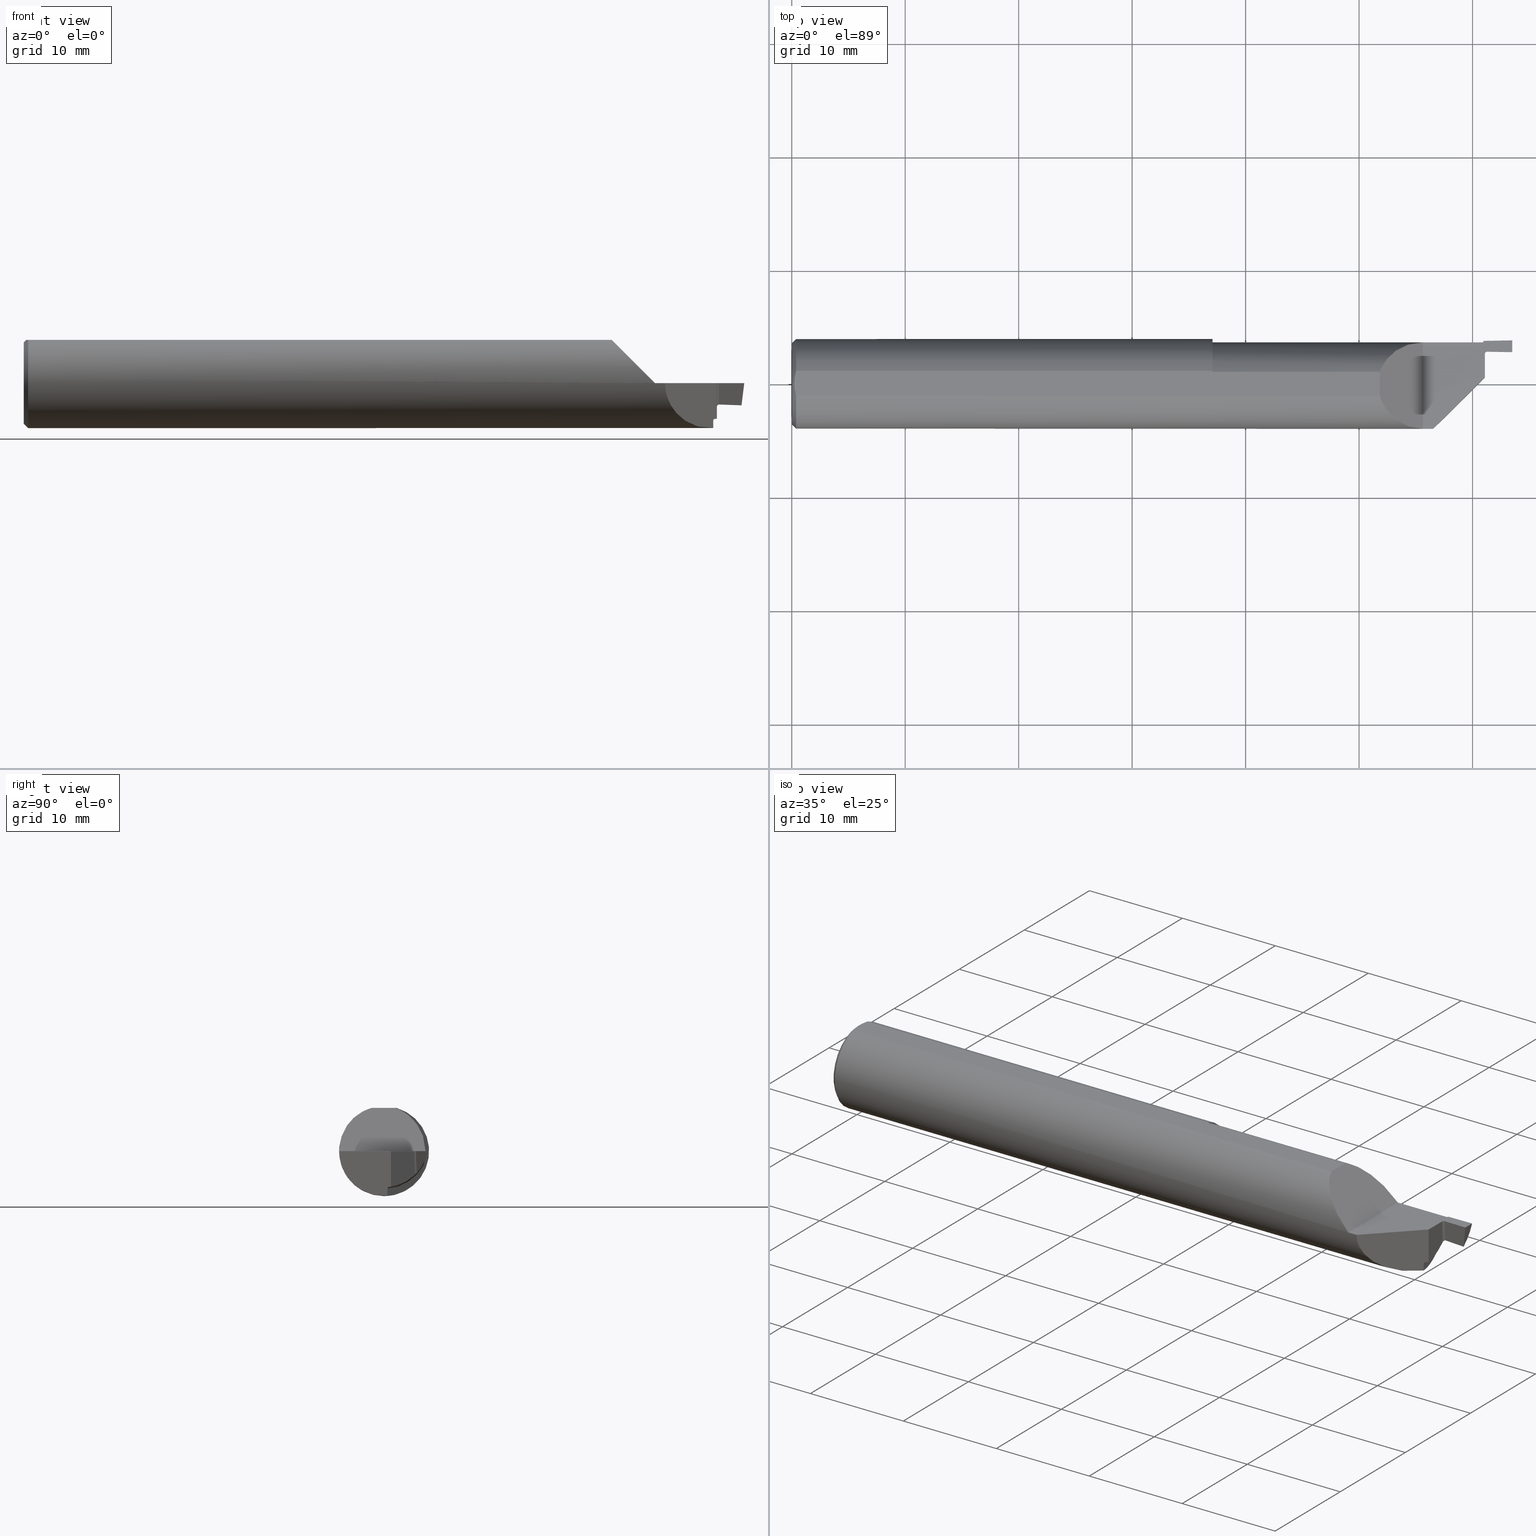
[diagram: canonical four-view strip — front | top / right | iso, engineering-drawing reading convention]
A machine part, canonical four-view strip (front | top / right | iso — engineering-drawing reading convention). The complete STEP part file that produces these views, byte-faithful:
ISO-10303-21;
HEADER;
FILE_DESCRIPTION (( 'STEP AP203' ),
    '1' );
FILE_NAME ('220076-FG312-040.STEP',
    '2024-06-10T23:03:43',
    ( '' ),
    ( '' ),
    'SwSTEP 2.0',
    'SolidWorks 2022',
    '' );
FILE_SCHEMA (( 'CONFIG_CONTROL_DESIGN' ));
ENDSEC;

DATA;
#1 = EDGE_CURVE ( 'NONE', #102, #218, #459, .T. ) ;
#2 = ORIENTED_EDGE ( 'NONE', *, *, #414, .F. ) ;
#3 = CARTESIAN_POINT ( 'NONE',  ( 2.405000000000000249, 0.02390000000000001845, 0.000000000000000000 ) ) ;
#4 = CARTESIAN_POINT ( 'NONE',  ( 0.01499999999999970281, 0.04286257108480545641, 0.1500999999999999834 ) ) ;
#5 = APPROVAL_DATE_TIME ( #827, #329 ) ;
#6 = EDGE_LOOP ( 'NONE', ( #67, #416, #729, #484, #2, #119, #803, #824, #792, #96, #342 ) ) ;
#7 = LINE ( 'NONE', #765, #35 ) ;
#8 = CARTESIAN_POINT ( 'NONE',  ( 2.120766287695780239, 0.1440559360311357284, 0.06933371230421984943 ) ) ;
#9 = EDGE_CURVE ( 'NONE', #305, #440, #185, .T. ) ;
#10 = CARTESIAN_POINT ( 'NONE',  ( 1.460000000000000187, 0.04286257108480545641, 0.1500999999999999834 ) ) ;
#11 = CARTESIAN_POINT ( 'NONE',  ( 2.405000000000000249, 0.02390000000000001845, -0.1560999999999999888 ) ) ;
#12 = CARTESIAN_POINT ( 'NONE',  ( 2.405001483111417926, 0.1037663323184448705, -0.0002790132549049748338 ) ) ;
#13 = LINE ( 'NONE', #579, #650 ) ;
#14 = EDGE_CURVE ( 'NONE', #31, #450, #366, .T. ) ;
#15 = CARTESIAN_POINT ( 'NONE',  ( 2.397423808061100114, 0.01632380806110001956, -0.1242544045886763149 ) ) ;
#16 = PLANE ( 'NONE',  #517 ) ;
#17 = DESIGN_CONTEXT ( 'detailed design', #272, 'design' ) ;
#18 = PERSON_AND_ORGANIZATION_ROLE ( 'creator' ) ;
#19 = VECTOR ( 'NONE', #241, 39.37007874015748143 ) ;
#20 = CYLINDRICAL_SURFACE ( 'NONE', #310, 0.1499999999999999667 ) ;
#21 = FACE_OUTER_BOUND ( 'NONE', #552, .T. ) ;
#22 = VERTEX_POINT ( 'NONE', #755 ) ;
#23 = ADVANCED_FACE ( 'NONE', ( #313 ), #208, .T. ) ;
#24 = DIRECTION ( 'NONE',  ( -1.000000000000000000, 0.000000000000000000, -0.000000000000000000 ) ) ;
#25 = EDGE_LOOP ( 'NONE', ( #124, #486, #423 ) ) ;
#26 =( BOUNDED_CURVE ( )  B_SPLINE_CURVE ( 3, ( #441, #698, #179, #115 ),
 .UNSPECIFIED., .F., .T. ) 
 B_SPLINE_CURVE_WITH_KNOTS ( ( 4, 4 ),
 ( 1.720556221768346328, 2.319328245325930737 ),
 .UNSPECIFIED. ) 
 CURVE ( )  GEOMETRIC_REPRESENTATION_ITEM ( )  RATIONAL_B_SPLINE_CURVE ( ( 1.000000000000000000, 0.9703451699787477569, 0.9703451699787477569, 1.000000000000000000 ) ) 
 REPRESENTATION_ITEM ( '' )  );
#27 = ORIENTED_EDGE ( 'NONE', *, *, #719, .F. ) ;
#28 = CARTESIAN_POINT ( 'NONE',  ( 2.393528424321476944, 0.1413178839606255843, -0.02970743870867165182 ) ) ;
#29 = EDGE_LOOP ( 'NONE', ( #324, #419, #182, #173 ) ) ;
#30 = ADVANCED_FACE ( 'NONE', ( #116 ), #144, .F. ) ;
#31 = VERTEX_POINT ( 'NONE', #818 ) ;
#32 = VECTOR ( 'NONE', #217, 39.37007874015748143 ) ;
#33 = CARTESIAN_POINT ( 'NONE',  ( 2.391587017932428338, 0.1399723861135269698, -0.03617397850232798029 ) ) ;
#34 = VERTEX_POINT ( 'NONE', #630 ) ;
#35 = VECTOR ( 'NONE', #512, 39.37007874015748143 ) ;
#36 = ADVANCED_FACE ( 'NONE', ( #694 ), #122, .T. ) ;
#37 = CARTESIAN_POINT ( 'NONE',  ( 0.01308010236197408062, -0.03587054952121924989, 0.1500999999999999834 ) ) ;
#38 = VERTEX_POINT ( 'NONE', #635 ) ;
#39 = CARTESIAN_POINT ( 'NONE',  ( 0.01499999999999970281, 0.000000000000000000, 0.000000000000000000 ) ) ;
#40 = ORIENTED_EDGE ( 'NONE', *, *, #162, .T. ) ;
#41 = CARTESIAN_POINT ( 'NONE',  ( 2.405000000000000249, 0.1036166103841832803, 0.000000000000000000 ) ) ;
#42 = ORIENTED_EDGE ( 'NONE', *, *, #692, .T. ) ;
#43 = CARTESIAN_POINT ( 'NONE',  ( 2.224999999999999645, -0.1560999999999999888, 0.000000000000000000 ) ) ;
#44 = CARTESIAN_POINT ( 'NONE',  ( 2.397684499763014010, 0.001388790460967761348, 0.02500000000000001180 ) ) ;
#45 = DIRECTION ( 'NONE',  ( -1.000000000000000000, -0.000000000000000000, -0.000000000000000000 ) ) ;
#46 = ORIENTED_EDGE ( 'NONE', *, *, #674, .F. ) ;
#47 = PRODUCT_DEFINITION_FORMATION_WITH_SPECIFIED_SOURCE ( 'ANY', '', #780, .NOT_KNOWN. ) ;
#48 = CARTESIAN_POINT ( 'NONE',  ( 2.413184916630657373, 0.1142055148191931657, -0.07418275632165870215 ) ) ;
#49 = VECTOR ( 'NONE', #482, 39.37007874015748143 ) ;
#50 = DIRECTION ( 'NONE',  ( 0.000000000000000000, 0.000000000000000000, -1.000000000000000000 ) ) ;
#51 =( NAMED_UNIT ( * ) SI_UNIT ( $, .STERADIAN. ) SOLID_ANGLE_UNIT ( ) );
#52 = VERTEX_POINT ( 'NONE', #258 ) ;
#53 = CARTESIAN_POINT ( 'NONE',  ( 2.392508837550267220, 0.01140883755026705221, -0.1556825244712829459 ) ) ;
#54 = PRODUCT_RELATED_PRODUCT_CATEGORY ( 'detail', '', ( #780 ) ) ;
#55 = PLANE ( 'NONE',  #673 ) ;
#56 = CARTESIAN_POINT ( 'NONE',  ( 2.413139705841341964, 0.1116153904340031061, -1.280553747030123384E-17 ) ) ;
#57 = ORIENTED_EDGE ( 'NONE', *, *, #210, .T. ) ;
#58 = DIRECTION ( 'NONE',  ( 0.01745240643726908916, -0.9998476951563914916, 0.000000000000000000 ) ) ;
#59 = DIRECTION ( 'NONE',  ( 1.000000000000000000, 0.000000000000000000, 0.000000000000000000 ) ) ;
#60 = ADVANCED_FACE ( 'NONE', ( #567 ), #55, .T. ) ;
#61 = APPROVAL_STATUS ( 'not_yet_approved' ) ;
#62 = ORIENTED_EDGE ( 'NONE', *, *, #433, .T. ) ;
#63 =( GEOMETRIC_REPRESENTATION_CONTEXT ( 3 ) GLOBAL_UNCERTAINTY_ASSIGNED_CONTEXT ( ( #539 ) ) GLOBAL_UNIT_ASSIGNED_CONTEXT ( ( #571, #253, #51 ) ) REPRESENTATION_CONTEXT ( 'NONE', 'WORKASPACE' ) );
#64 = LINE ( 'NONE', #518, #132 ) ;
#65 = CARTESIAN_POINT ( 'NONE',  ( 0.01158539406439744110, 0.02885992225672986272, 0.1500999999999999834 ) ) ;
#66 = CARTESIAN_POINT ( 'NONE',  ( 2.397000000000000242, 0.1470992383597802822, 0.000000000000000000 ) ) ;
#67 = ORIENTED_EDGE ( 'NONE', *, *, #14, .F. ) ;
#68 = CARTESIAN_POINT ( 'NONE',  ( 2.400000000000000355, -0.01590076164021981056, 0.000000000000000000 ) ) ;
#69 = CARTESIAN_POINT ( 'NONE',  ( 2.413239966996807429, 0.1173593481836953528, -0.3937401514929490531 ) ) ;
#70 =( LENGTH_UNIT ( ) NAMED_UNIT ( * ) SI_UNIT ( $, .METRE. ) );
#71 = VERTEX_POINT ( 'NONE', #699 ) ;
#72 = EDGE_CURVE ( 'NONE', #34, #305, #717, .T. ) ;
#73 = DIRECTION ( 'NONE',  ( 1.000000000000000000, 0.000000000000000000, 0.000000000000000000 ) ) ;
#74 = LINE ( 'NONE', #268, #354 ) ;
#75 = DIRECTION ( 'NONE',  ( -0.000000000000000000, -0.000000000000000000, 1.000000000000000000 ) ) ;
#76 = CARTESIAN_POINT ( 'NONE',  ( 1.460000000000000187, -0.01590076164021977240, 0.000000000000000000 ) ) ;
#77 = VERTEX_POINT ( 'NONE', #236 ) ;
#78 = DIRECTION ( 'NONE',  ( 0.000000000000000000, 0.000000000000000000, -1.000000000000000000 ) ) ;
#79 = AXIS2_PLACEMENT_3D ( 'NONE', #275, #75, #73 ) ;
#80 = CARTESIAN_POINT ( 'NONE',  ( 2.405005047996914502, 0.1039007625764227088, -0.008282853067947263878 ) ) ;
#81 = DIRECTION ( 'NONE',  ( -1.000000000000000000, -0.000000000000000000, -0.000000000000000000 ) ) ;
#82 =( BOUNDED_CURVE ( )  B_SPLINE_CURVE ( 3, ( #401, #8, #714, #396 ),
 .UNSPECIFIED., .F., .F. ) 
 B_SPLINE_CURVE_WITH_KNOTS ( ( 4, 4 ),
 ( 4.713013980425380112, 5.929564525929065688 ),
 .UNSPECIFIED. ) 
 CURVE ( )  GEOMETRIC_REPRESENTATION_ITEM ( )  RATIONAL_B_SPLINE_CURVE ( ( 1.000000000000000000, 0.8804232255846621280, 0.8804232255846621280, 1.000000000000000000 ) ) 
 REPRESENTATION_ITEM ( '' )  );
#83 = ADVANCED_FACE ( 'NONE', ( #252 ), #280, .F. ) ;
#84 = DIRECTION ( 'NONE',  ( 0.01744177490282203258, 0.9992386149554827179, 0.03489949670250104552 ) ) ;
#85 = PLANE ( 'NONE',  #451 ) ;
#86 = ORIENTED_EDGE ( 'NONE', *, *, #608, .T. ) ;
#87 = APPROVAL_PERSON_ORGANIZATION ( #375, #329, #318 ) ;
#88 = EDGE_CURVE ( 'NONE', #748, #38, #626, .T. ) ;
#89 = LINE ( 'NONE', #151, #49 ) ;
#90 = AXIS2_PLACEMENT_3D ( 'NONE', #623, #597, #593 ) ;
#91 = VERTEX_POINT ( 'NONE', #761 ) ;
#92 = VERTEX_POINT ( 'NONE', #171 ) ;
#93 = EDGE_CURVE ( 'NONE', #606, #224, #378, .T. ) ;
#94 = CARTESIAN_POINT ( 'NONE',  ( 2.405000000000000249, 0.1036166103841832803, -0.08490331718833593611 ) ) ;
#95 = ORIENTED_EDGE ( 'NONE', *, *, #659, .F. ) ;
#96 = ORIENTED_EDGE ( 'NONE', *, *, #788, .T. ) ;
#97 = CARTESIAN_POINT ( 'NONE',  ( 2.395237541366322276, 0.1415749431196159647, -0.02830905173955956117 ) ) ;
#98 = ORIENTED_EDGE ( 'NONE', *, *, #741, .T. ) ;
#99 = LINE ( 'NONE', #613, #344 ) ;
#100 = ORIENTED_EDGE ( 'NONE', *, *, #364, .T. ) ;
#101 = CARTESIAN_POINT ( 'NONE',  ( 2.500000000000000000, 0.1510992383597803135, 3.841661241090370459E-17 ) ) ;
#102 = VERTEX_POINT ( 'NONE', #180 ) ;
#103 = CARTESIAN_POINT ( 'NONE',  ( 2.393284134125179818, 0.01218413412517886131, -0.1266357782406275778 ) ) ;
#104 = CARTESIAN_POINT ( 'NONE',  ( 2.405048991548558224, 0.1083055522586729574, -0.08038630078230225851 ) ) ;
#105 = DIRECTION ( 'NONE',  ( -1.000000000000000000, 4.086873660734437432E-17, -0.000000000000000000 ) ) ;
#106 = CARTESIAN_POINT ( 'NONE',  ( 2.413000000000000256, 0.1036166103841832803, 0.000000000000000000 ) ) ;
#107 = EDGE_LOOP ( 'NONE', ( #805, #100, #615, #672, #478 ) ) ;
#108 = DIRECTION ( 'NONE',  ( -0.000000000000000000, 1.000000000000000000, 0.000000000000000000 ) ) ;
#109 = DIRECTION ( 'NONE',  ( 0.000000000000000000, -1.000000000000000000, 0.000000000000000000 ) ) ;
#110 = CARTESIAN_POINT ( 'NONE',  ( 2.399956862387794487, 0.01885686238779464216, -0.1240053609185062800 ) ) ;
#111 = PRODUCT_DEFINITION ( 'UNKNOWN', '', #47, #17 ) ;
#112 = EDGE_LOOP ( 'NONE', ( #489, #501, #789, #611 ) ) ;
#113 = APPROVAL_PERSON_ORGANIZATION ( #640, #408, #576 ) ;
#114 = CIRCLE ( 'NONE', #688, 0.1599999999999999756 ) ;
#115 = CARTESIAN_POINT ( 'NONE',  ( 2.405000000000000249, 0.1036166103841832803, -0.08490331718833593611 ) ) ;
#116 = FACE_OUTER_BOUND ( 'NONE', #663, .T. ) ;
#117 = CIRCLE ( 'NONE', #614, 0.1600000000000001421 ) ;
#118 = CIRCLE ( 'NONE', #294, 0.1560999999999999888 ) ;
#119 = ORIENTED_EDGE ( 'NONE', *, *, #379, .T. ) ;
#120 = CARTESIAN_POINT ( 'NONE',  ( 2.408539132635944657, 0.1129636091408927623, -0.07548669440255309504 ) ) ;
#121 = EDGE_CURVE ( 'NONE', #127, #476, #167, .T. ) ;
#122 = CYLINDRICAL_SURFACE ( 'NONE', #251, 0.1560999999999999888 ) ;
#123 = PERSON_AND_ORGANIZATION ( #686, #596 ) ;
#124 = ORIENTED_EDGE ( 'NONE', *, *, #563, .T. ) ;
#125 = FACE_OUTER_BOUND ( 'NONE', #696, .T. ) ;
#126 = DIRECTION ( 'NONE',  ( -4.086873660734437432E-17, -1.000000000000000000, 0.000000000000000000 ) ) ;
#127 = VERTEX_POINT ( 'NONE', #4 ) ;
#128 = DIRECTION ( 'NONE',  ( 0.000000000000000000, -1.000000000000000000, 0.000000000000000000 ) ) ;
#129 = DIRECTION ( 'NONE',  ( -0.000000000000000000, -0.000000000000000000, 1.000000000000000000 ) ) ;
#130 = EDGE_CURVE ( 'NONE', #298, #738, #591, .T. ) ;
#131 = VERTEX_POINT ( 'NONE', #80 ) ;
#132 = VECTOR ( 'NONE', #522, 39.37007874015748143 ) ;
#133 = CARTESIAN_POINT ( 'NONE',  ( 2.405004234609787961, 0.1038778769848179434, -0.006948231403269632990 ) ) ;
#134 = CARTESIAN_POINT ( 'NONE',  ( 2.390354621555806691, 0.1348237892173857755, -0.05368528447138092713 ) ) ;
#135 = ADVANCED_FACE ( 'NONE', ( #766 ), #338, .T. ) ;
#136 = CARTESIAN_POINT ( 'NONE',  ( 2.392508837550267220, 0.01140883755026705221, -0.1296700073607929826 ) ) ;
#137 = DIRECTION ( 'NONE',  ( 0.000000000000000000, -0.9993910123954978797, -0.03489418781261290070 ) ) ;
#138 = ORIENTED_EDGE ( 'NONE', *, *, #749, .F. ) ;
#139 = B_SPLINE_CURVE_WITH_KNOTS ( 'NONE', 3,
 ( #205, #584, #519, #527 ),
 .UNSPECIFIED., .F., .F.,
 ( 4, 4 ),
 ( 0.000000000000000000, 3.121349964539246394E-05 ),
 .UNSPECIFIED. ) ;
#140 = EDGE_CURVE ( 'NONE', #52, #546, #832, .T. ) ;
#141 = CARTESIAN_POINT ( 'NONE',  ( 2.405245147174138509, -0.1260086291140299075, -0.4022423266069747871 ) ) ;
#142 = DIRECTION ( 'NONE',  ( 0.000000000000000000, 0.000000000000000000, -1.000000000000000000 ) ) ;
#143 = CC_DESIGN_APPROVAL ( #202, ( #431 ) ) ;
#144 = TOROIDAL_SURFACE ( 'NONE', #612, 0.1549999999999999989, 0.005000000000000000104 ) ;
#145 = B_SPLINE_CURVE_WITH_KNOTS ( 'NONE', 3,
 ( #533, #402, #166, #304, #37, #530 ),
 .UNSPECIFIED., .F., .F.,
 ( 4, 2, 4 ),
 ( 0.004962684357525391429, 0.005507153342650035824, 0.006051622327774681086 ),
 .UNSPECIFIED. ) ;
#146 = CARTESIAN_POINT ( 'NONE',  ( 2.405002345047223766, 0.1038115164086406417, -0.002944330584076113207 ) ) ;
#147 = CIRCLE ( 'NONE', #254, 0.1411000000000003085 ) ;
#148 = DIRECTION ( 'NONE',  ( -0.7071067811865486830, -0.7071067811865463515, 0.000000000000000000 ) ) ;
#149 = ADVANCED_FACE ( 'NONE', ( #461 ), #207, .F. ) ;
#150 = DIRECTION ( 'NONE',  ( 0.000000000000000000, 0.000000000000000000, 1.000000000000000000 ) ) ;
#151 = CARTESIAN_POINT ( 'NONE',  ( 1.460000000000000187, 0.1440992383597803073, 0.000000000000000000 ) ) ;
#152 = CARTESIAN_POINT ( 'NONE',  ( 2.397000000000000242, 0.1415473010265777265, -0.02846238855880210000 ) ) ;
#153 = ORIENTED_EDGE ( 'NONE', *, *, #9, .F. ) ;
#154 = AXIS2_PLACEMENT_3D ( 'NONE', #240, #747, #58 ) ;
#155 = EDGE_CURVE ( 'NONE', #627, #796, #336, .T. ) ;
#156 = CARTESIAN_POINT ( 'NONE',  ( 1.460000000000000187, 0.03950672882812750197, 0.1500999999999999834 ) ) ;
#157 = ORIENTED_EDGE ( 'NONE', *, *, #72, .F. ) ;
#158 = EDGE_LOOP ( 'NONE', ( #376, #690, #157, #406, #764, #249, #732, #169, #315, #535 ) ) ;
#159 = CARTESIAN_POINT ( 'NONE',  ( 2.391261467994957535, 0.1394455784818683652, -0.03837570486038762579 ) ) ;
#160 = ORIENTED_EDGE ( 'NONE', *, *, #602, .T. ) ;
#161 = CARTESIAN_POINT ( 'NONE',  ( 0.000000000000000000, 0.000000000000000000, 0.000000000000000000 ) ) ;
#162 = EDGE_CURVE ( 'NONE', #812, #606, #13, .T. ) ;
#163 = ORIENTED_EDGE ( 'NONE', *, *, #493, .T. ) ;
#164 = CARTESIAN_POINT ( 'NONE',  ( 2.399999999999999911, 0.1476993313875428482, -0.008628462229941076533 ) ) ;
#165 = ORIENTED_EDGE ( 'NONE', *, *, #140, .F. ) ;
#166 = CARTESIAN_POINT ( 'NONE',  ( 0.009526811708237869006, -0.01443825677426632814, 0.1500999999999999834 ) ) ;
#167 = B_SPLINE_CURVE_WITH_KNOTS ( 'NONE', 3,
 ( #430, #687, #65, #575, #421, #652 ),
 .UNSPECIFIED., .F., .F.,
 ( 4, 2, 4 ),
 ( 0.003872957156311482643, 0.004417820756918437036, 0.004962684357525391429 ),
 .UNSPECIFIED. ) ;
#168 = CC_DESIGN_APPROVAL ( #408, ( #47 ) ) ;
#169 = ORIENTED_EDGE ( 'NONE', *, *, #524, .T. ) ;
#170 = CARTESIAN_POINT ( 'NONE',  ( 0.008999999999998765932, 6.845491512164019265E-17, 0.1500999999999999834 ) ) ;
#171 = CARTESIAN_POINT ( 'NONE',  ( 0.000000000000000000, 1.819825143532968629E-17, 0.1411000000000003085 ) ) ;
#172 = CARTESIAN_POINT ( 'NONE',  ( 0.000000000000000000, 0.04286257108480545641, 0.1500999999999999834 ) ) ;
#173 = ORIENTED_EDGE ( 'NONE', *, *, #364, .F. ) ;
#174 = CARTESIAN_POINT ( 'NONE',  ( 2.039999999999999591, 0.04286257108480545641, 0.1500999999999999834 ) ) ;
#175 = CARTESIAN_POINT ( 'NONE',  ( 2.397000000000000242, -0.01590076164021981750, 0.000000000000000000 ) ) ;
#176 = CC_DESIGN_DATE_AND_TIME_ASSIGNMENT ( #768, #815, ( #111 ) ) ;
#177 = FACE_OUTER_BOUND ( 'NONE', #283, .T. ) ;
#178 = ORIENTED_EDGE ( 'NONE', *, *, #788, .F. ) ;
#179 = CARTESIAN_POINT ( 'NONE',  ( 2.405000000000000249, 0.08134335614844005746, -0.1055888569179781467 ) ) ;
#180 = CARTESIAN_POINT ( 'NONE',  ( 2.413184916630657373, 0.1142055148191931657, -0.07418275632165870215 ) ) ;
#181 = COORDINATED_UNIVERSAL_TIME_OFFSET ( 8, 0, .BEHIND. ) ;
#182 = ORIENTED_EDGE ( 'NONE', *, *, #592, .T. ) ;
#183 = ADVANCED_FACE ( 'NONE', ( #707 ), #331, .F. ) ;
#184 = CARTESIAN_POINT ( 'NONE',  ( 2.059871508359184311, -0.1124504032942231085, 0.1302284916408148197 ) ) ;
#185 = LINE ( 'NONE', #621, #502 ) ;
#186 = CARTESIAN_POINT ( 'NONE',  ( 2.405000000000000249, 0.02390000000000001845, -0.1233210395421390215 ) ) ;
#187 = VERTEX_POINT ( 'NONE', #134 ) ;
#188 = CARTESIAN_POINT ( 'NONE',  ( 2.400000000000000355, 0.1470992383597802822, 0.000000000000000000 ) ) ;
#189 = DIRECTION ( 'NONE',  ( -0.9998476951563914916, -0.01745240643726934937, 0.000000000000000000 ) ) ;
#190 = ORIENTED_EDGE ( 'NONE', *, *, #93, .F. ) ;
#191 = CARTESIAN_POINT ( 'NONE',  ( 2.392170106203865387, 0.03081474338877097929, -0.1530283032314129488 ) ) ;
#192 = CARTESIAN_POINT ( 'NONE',  ( 1.460000000000000187, -0.01590076164021977240, 0.000000000000000000 ) ) ;
#193 = APPLICATION_PROTOCOL_DEFINITION ( 'international standard', 'config_control_design', 1994, #409 ) ;
#194 = EDGE_LOOP ( 'NONE', ( #676, #753, #573, #483 ) ) ;
#195 = DIRECTION ( 'NONE',  ( -0.9998476951563912696, 0.01745240643727517110, -0.000000000000000000 ) ) ;
#196 = DIRECTION ( 'NONE',  ( 1.000000000000000000, -4.086873660734437432E-17, 0.000000000000000000 ) ) ;
#197 =( BOUNDED_CURVE ( )  B_SPLINE_CURVE ( 3, ( #244, #634, #553, #53 ),
 .UNSPECIFIED., .F., .F. ) 
 B_SPLINE_CURVE_WITH_KNOTS ( ( 4, 4 ),
 ( 1.372087361718560494, 1.497644378797060138 ),
 .UNSPECIFIED. ) 
 CURVE ( )  GEOMETRIC_REPRESENTATION_ITEM ( )  RATIONAL_B_SPLINE_CURVE ( ( 1.000000000000000000, 0.9986867176927802792, 0.9986867176927802792, 1.000000000000000000 ) ) 
 REPRESENTATION_ITEM ( '' )  );
#198 = EDGE_CURVE ( 'NONE', #370, #52, #139, .T. ) ;
#199 = PLANE ( 'NONE',  #797 ) ;
#200 = CARTESIAN_POINT ( 'NONE',  ( 2.392685261287232024, 0.001301528428781411565, 0.02500000000000001180 ) ) ;
#201 = COORDINATED_UNIVERSAL_TIME_OFFSET ( 8, 0, .BEHIND. ) ;
#202 = APPROVAL ( #785, 'UNSPECIFIED' ) ;
#203 =( BOUNDED_CURVE ( )  B_SPLINE_CURVE ( 3, ( #735, #164, #418, #671 ),
 .UNSPECIFIED., .F., .F. ) 
 B_SPLINE_CURVE_WITH_KNOTS ( ( 4, 4 ),
 ( 2.886295755973517618, 2.974144574370104266 ),
 .UNSPECIFIED. ) 
 CURVE ( )  GEOMETRIC_REPRESENTATION_ITEM ( )  RATIONAL_B_SPLINE_CURVE ( ( 1.000000000000000000, 0.9993569854857048407, 0.9993569854857048407, 1.000000000000000000 ) ) 
 REPRESENTATION_ITEM ( '' )  );
#204 = FACE_OUTER_BOUND ( 'NONE', #319, .T. ) ;
#205 = CARTESIAN_POINT ( 'NONE',  ( 2.405000000000000249, 0.1036166103841832803, -0.08490331718833593611 ) ) ;
#206 = LINE ( 'NONE', #400, #438 ) ;
#207 = CYLINDRICAL_SURFACE ( 'NONE', #585, 0.007999999999999845776 ) ;
#208 = CONICAL_SURFACE ( 'NONE', #397, 0.1411000000000003085, 0.7853981633974471688 ) ;
#209 = DIRECTION ( 'NONE',  ( 0.000000000000000000, -0.03490480639812536257, 0.9993906415863165194 ) ) ;
#210 = EDGE_CURVE ( 'NONE', #305, #738, #82, .T. ) ;
#211 = CARTESIAN_POINT ( 'NONE',  ( 2.399432029185472270, 0.1437581862590671389, -0.02241112206594925160 ) ) ;
#212 = APPROVAL_ROLE ( '' ) ;
#213 = DIRECTION ( 'NONE',  ( 0.01745240643727014734, -0.9998476951563916026, 0.000000000000000000 ) ) ;
#214 = CARTESIAN_POINT ( 'NONE',  ( 2.398765816562231645, 0.1425919725280177242, -0.02573016524494771071 ) ) ;
#215 = ORIENTED_EDGE ( 'NONE', *, *, #798, .F. ) ;
#216 = ADVANCED_FACE ( 'NONE', ( #647 ), #453, .F. ) ;
#217 = DIRECTION ( 'NONE',  ( -0.0006090802009083879243, -0.03489418134011375294, 0.9993908270190957621 ) ) ;
#218 = VERTEX_POINT ( 'NONE', #655 ) ;
#219 = EDGE_CURVE ( 'NONE', #562, #71, #74, .T. ) ;
#220 = VERTEX_POINT ( 'NONE', #389 ) ;
#221 = CARTESIAN_POINT ( 'NONE',  ( 2.394182829550270064, 0.1414948030566662573, -0.02875535868220120000 ) ) ;
#222 = ORIENTED_EDGE ( 'NONE', *, *, #274, .T. ) ;
#223 = ADVANCED_FACE ( 'NONE', ( #594 ), #16, .F. ) ;
#224 = VERTEX_POINT ( 'NONE', #457 ) ;
#225 =( BOUNDED_CURVE ( )  B_SPLINE_CURVE ( 3, ( #802, #654, #555, #362 ),
 .UNSPECIFIED., .F., .F. ) 
 B_SPLINE_CURVE_WITH_KNOTS ( ( 4, 4 ),
 ( 6.169955599334858931, 6.247658810433360799 ),
 .UNSPECIFIED. ) 
 CURVE ( )  GEOMETRIC_REPRESENTATION_ITEM ( )  RATIONAL_B_SPLINE_CURVE ( ( 1.000000000000000000, 0.9994969142019810571, 0.9994969142019810571, 1.000000000000000000 ) ) 
 REPRESENTATION_ITEM ( '' )  );
#226 = CARTESIAN_POINT ( 'NONE',  ( 2.390354621555806691, 0.1348237892173857755, -0.05368528447138092713 ) ) ;
#227 = ORIENTED_EDGE ( 'NONE', *, *, #814, .T. ) ;
#228 = CARTESIAN_POINT ( 'NONE',  ( 2.399999999999999911, 0.1940992383597803239, 0.000000000000000000 ) ) ;
#229 = ORIENTED_EDGE ( 'NONE', *, *, #234, .T. ) ;
#230 = DIRECTION ( 'NONE',  ( 0.000000000000000000, 1.000000000000000000, 0.000000000000000000 ) ) ;
#231 = ORIENTED_EDGE ( 'NONE', *, *, #749, .T. ) ;
#232 = CARTESIAN_POINT ( 'NONE',  ( 0.000000000000000000, 0.000000000000000000, -0.1411000000000003085 ) ) ;
#233 = AXIS2_PLACEMENT_3D ( 'NONE', #11, #720, #148 ) ;
#234 = EDGE_CURVE ( 'NONE', #218, #295, #633, .T. ) ;
#235 = CARTESIAN_POINT ( 'NONE',  ( 2.405675176084977274, 0.1100717779049336098, -0.07856884603554765978 ) ) ;
#236 = CARTESIAN_POINT ( 'NONE',  ( 2.397000000000000242, 0.1415473010265777265, -0.02846238855880210000 ) ) ;
#237 = VECTOR ( 'NONE', #195, 39.37007874015748854 ) ;
#238 = DIRECTION ( 'NONE',  ( 0.000000000000000000, 1.000000000000000000, 0.000000000000000000 ) ) ;
#239 = ORIENTED_EDGE ( 'NONE', *, *, #514, .T. ) ;
#240 = CARTESIAN_POINT ( 'NONE',  ( 2.392685261287232024, 0.001301528428781412866, 0.02500000000000001180 ) ) ;
#241 = DIRECTION ( 'NONE',  ( -0.7071067811865486830, -0.7071067811865464625, 0.000000000000000000 ) ) ;
#242 = EDGE_CURVE ( 'NONE', #298, #450, #114, .T. ) ;
#243 = CARTESIAN_POINT ( 'NONE',  ( 2.397423808061100114, 0.01632380806110001956, -0.1242544045886763149 ) ) ;
#244 = CARTESIAN_POINT ( 'NONE',  ( 2.392170106203865387, 0.03081474338877097929, -0.1530283032314129488 ) ) ;
#245 = B_SPLINE_CURVE_WITH_KNOTS ( 'NONE', 3,
 ( #56, #695, #367, #834, #314, #820 ),
 .UNSPECIFIED., .F., .F.,
 ( 4, 2, 4 ),
 ( 0.000000000000000000, 0.5000000000000000000, 1.000000000000000000 ),
 .UNSPECIFIED. ) ;
#246 = CARTESIAN_POINT ( 'NONE',  ( 2.189999999999999947, -0.01590076164021980362, 0.000000000000000000 ) ) ;
#247 = LENGTH_MEASURE_WITH_UNIT ( LENGTH_MEASURE( 0.02539999999999999897 ), #70 );
#248 = EDGE_CURVE ( 'NONE', #77, #762, #709, .T. ) ;
#249 = ORIENTED_EDGE ( 'NONE', *, *, #274, .F. ) ;
#250 = CARTESIAN_POINT ( 'NONE',  ( 2.410647070380315338, 0.1139364954052842493, -0.07443957652655427970 ) ) ;
#251 = AXIS2_PLACEMENT_3D ( 'NONE', #497, #833, #506 ) ;
#252 = FACE_OUTER_BOUND ( 'NONE', #286, .T. ) ;
#253 =( NAMED_UNIT ( * ) PLANE_ANGLE_UNIT ( ) SI_UNIT ( $, .RADIAN. ) );
#254 = AXIS2_PLACEMENT_3D ( 'NONE', #161, #417, #340 ) ;
#255 = CIRCLE ( 'NONE', #468, 0.003000000000000213867 ) ;
#256 = EDGE_LOOP ( 'NONE', ( #540, #727, #160, #511, #637, #736 ) ) ;
#257 = CARTESIAN_POINT ( 'NONE',  ( 2.399999999999999911, 0.1493537318669599934, 0.000000000000000000 ) ) ;
#258 = CARTESIAN_POINT ( 'NONE',  ( 2.405051229097969756, 0.1045205136682970243, -0.08405771606141666796 ) ) ;
#259 =( BOUNDED_CURVE ( )  B_SPLINE_CURVE ( 3, ( #307, #377, #718, #191 ),
 .UNSPECIFIED., .F., .T. ) 
 B_SPLINE_CURVE_WITH_KNOTS ( ( 4, 4 ),
 ( 0.3421710031171500410, 1.274508393031518194 ),
 .UNSPECIFIED. ) 
 CURVE ( )  GEOMETRIC_REPRESENTATION_ITEM ( )  RATIONAL_B_SPLINE_CURVE ( ( 1.000000000000000000, 0.9288645905647989753, 0.9288645905647989753, 1.000000000000000000 ) ) 
 REPRESENTATION_ITEM ( '' )  );
#260 = DIRECTION ( 'NONE',  ( -1.000000000000000000, 0.000000000000000000, 0.000000000000000000 ) ) ;
#261 = ORIENTED_EDGE ( 'NONE', *, *, #88, .F. ) ;
#262 = FACE_OUTER_BOUND ( 'NONE', #256, .T. ) ;
#263 = CARTESIAN_POINT ( 'NONE',  ( 2.501506277050174365, 0.1561000000000000165, 0.01226764211312855388 ) ) ;
#264 = CALENDAR_DATE ( 2024, 10, 6 ) ;
#265 = ORIENTED_EDGE ( 'NONE', *, *, #433, .F. ) ;
#266 = CARTESIAN_POINT ( 'NONE',  ( 2.189999999999999947, -0.2560999999999999943, 0.000000000000000000 ) ) ;
#267 = CC_DESIGN_PERSON_AND_ORGANIZATION_ASSIGNMENT ( #773, #18, ( #47 ) ) ;
#268 = CARTESIAN_POINT ( 'NONE',  ( 0.000000000000000000, -0.04286257108480545641, 0.1500999999999999834 ) ) ;
#269 = AXIS2_PLACEMENT_3D ( 'NONE', #485, #566, #499 ) ;
#270 = DIRECTION ( 'NONE',  ( 0.000000000000000000, 1.000000000000000000, 0.000000000000000000 ) ) ;
#271 = CARTESIAN_POINT ( 'NONE',  ( 2.500000000000000000, 0.1510992383597803135, 3.841661241090370459E-17 ) ) ;
#272 = APPLICATION_CONTEXT ( 'configuration controlled 3d designs of mechanical parts and assemblies' ) ;
#273 = DATE_AND_TIME ( #393, #739 ) ;
#274 = EDGE_CURVE ( 'NONE', #742, #77, #777, .T. ) ;
#275 = CARTESIAN_POINT ( 'NONE',  ( 2.413000000000000256, 0.1036166103841832803, -0.1560999999999999888 ) ) ;
#276 = CARTESIAN_POINT ( 'NONE',  ( 2.405051229097969756, 0.1045205136682970243, -0.08405771606141666796 ) ) ;
#277 = CARTESIAN_POINT ( 'NONE',  ( 2.397423808061100114, 0.01632380806110001956, -0.1242544045886763149 ) ) ;
#278 = DIRECTION ( 'NONE',  ( 0.01745240643726934937, -0.9998476951563914916, 0.000000000000000000 ) ) ;
#279 = PERSON_AND_ORGANIZATION ( #686, #596 ) ;
#280 = TOROIDAL_SURFACE ( 'NONE', #743, 0.1630000000000001170, 0.003000000000000094171 ) ;
#281 = PLANE ( 'NONE',  #548 ) ;
#282 = DIRECTION ( 'NONE',  ( 0.000000000000000000, -1.000000000000000000, 0.000000000000000000 ) ) ;
#283 = EDGE_LOOP ( 'NONE', ( #730, #568, #542, #793, #481, #577, #165, #435, #801, #683, #62, #222 ) ) ;
#284 = CARTESIAN_POINT ( 'NONE',  ( 2.189999999999999947, -0.1560999999999999888, 0.000000000000000000 ) ) ;
#285 = EDGE_CURVE ( 'NONE', #742, #187, #449, .T. ) ;
#286 = EDGE_LOOP ( 'NONE', ( #581, #599, #821, #758 ) ) ;
#287 = B_SPLINE_CURVE_WITH_KNOTS ( 'NONE', 3,
 ( #706, #133, #642, #146, #779, #12 ),
 .UNSPECIFIED., .F., .F.,
 ( 4, 2, 4 ),
 ( 0.02300346261812782206, 0.02310447886655842692, 0.02320549511498903178 ),
 .UNSPECIFIED. ) ;
#288 = CARTESIAN_POINT ( 'NONE',  ( 2.390327835662139133, 0.1363583520378609804, -0.04937691032087788284 ) ) ;
#289 = ORIENTED_EDGE ( 'NONE', *, *, #697, .F. ) ;
#290 = LOCAL_TIME ( 16, 3, 43.00000000000000000, #471 ) ;
#291 = ORIENTED_EDGE ( 'NONE', *, *, #477, .T. ) ;
#292 = CARTESIAN_POINT ( 'NONE',  ( 2.397366273007872195, 0.1415415439934922803, -0.02849423527834625200 ) ) ;
#293 = CONICAL_SURFACE ( 'NONE', #269, 0.1411000000000003085, 0.7853981633974471688 ) ;
#294 = AXIS2_PLACEMENT_3D ( 'NONE', #487, #561, #238 ) ;
#295 = VERTEX_POINT ( 'NONE', #101 ) ;
#296 = LINE ( 'NONE', #172, #410 ) ;
#297 = ADVANCED_FACE ( 'NONE', ( #800 ), #534, .F. ) ;
#298 = VERTEX_POINT ( 'NONE', #156 ) ;
#299 = DIMENSIONAL_EXPONENTS ( 1.000000000000000000, 0.000000000000000000, 0.000000000000000000, 0.000000000000000000, 0.000000000000000000, 0.000000000000000000, 0.000000000000000000 ) ;
#300 = DIRECTION ( 'NONE',  ( 4.086873660734437432E-17, 1.000000000000000000, 0.000000000000000000 ) ) ;
#301 = ORIENTED_EDGE ( 'NONE', *, *, #503, .T. ) ;
#302 = DIRECTION ( 'NONE',  ( 0.7071067811865462405, -0.000000000000000000, 0.7071067811865487940 ) ) ;
#303 = DIRECTION ( 'NONE',  ( 1.000000000000000000, -4.086873660734437432E-17, 0.000000000000000000 ) ) ;
#304 = CARTESIAN_POINT ( 'NONE',  ( 0.01156122974740472244, -0.02873113156979012484, 0.1500999999999999279 ) ) ;
#305 = VERTEX_POINT ( 'NONE', #544 ) ;
#306 = CIRCLE ( 'NONE', #154, 0.1549999999999999711 ) ;
#307 = CARTESIAN_POINT ( 'NONE',  ( 2.390354621555806691, 0.1348237892173857755, -0.05368528447138092713 ) ) ;
#308 = EDGE_CURVE ( 'NONE', #762, #617, #203, .T. ) ;
#309 = DIRECTION ( 'NONE',  ( 0.7071067811865483499, 0.000000000000000000, -0.7071067811865466846 ) ) ;
#310 = AXIS2_PLACEMENT_3D ( 'NONE', #810, #420, #213 ) ;
#311 = DATE_AND_TIME ( #682, #823 ) ;
#312 = LINE ( 'NONE', #804, #769 ) ;
#313 = FACE_OUTER_BOUND ( 'NONE', #328, .T. ) ;
#314 = CARTESIAN_POINT ( 'NONE',  ( 2.405039367740888778, 0.1058582364897660971, -0.0002059503887030003340 ) ) ;
#315 = ORIENTED_EDGE ( 'NONE', *, *, #14, .T. ) ;
#316 = CARTESIAN_POINT ( 'NONE',  ( 2.405239968482531410, 0.1173593481836953528, -0.3937450271037417626 ) ) ;
#317 = EDGE_LOOP ( 'NONE', ( #138, #412, #554, #746, #261 ) ) ;
#318 = APPROVAL_ROLE ( '' ) ;
#319 = EDGE_LOOP ( 'NONE', ( #352, #301, #215 ) ) ;
#320 = CIRCLE ( 'NONE', #782, 0.1499999999999999667 ) ;
#321 = PLANE ( 'NONE',  #759 ) ;
#322 = CARTESIAN_POINT ( 'NONE',  ( 2.490538647403031991, 0.1129556702138064250, -0.07705653322692430918 ) ) ;
#323 = APPROVAL_STATUS ( 'not_yet_approved' ) ;
#324 = ORIENTED_EDGE ( 'NONE', *, *, #1, .T. ) ;
#325 = DIRECTION ( 'NONE',  ( -1.000000000000000000, 0.000000000000000000, -0.000000000000000000 ) ) ;
#326 = PERSON_AND_ORGANIZATION_ROLE ( 'design_owner' ) ;
#327 = EDGE_CURVE ( 'NONE', #34, #220, #89, .T. ) ;
#328 = EDGE_LOOP ( 'NONE', ( #556, #363, #828, #550, #27 ) ) ;
#329 = APPROVAL ( #61, 'UNSPECIFIED' ) ;
#330 = LINE ( 'NONE', #383, #589 ) ;
#331 = PLANE ( 'NONE',  #716 ) ;
#332 = CARTESIAN_POINT ( 'NONE',  ( 2.405000000000000249, 0.1036166103841832803, -0.1560999999999999888 ) ) ;
#333 = DIRECTION ( 'NONE',  ( -1.000000000000000000, 4.086873660734437432E-17, -0.000000000000000000 ) ) ;
#334 = ADVANCED_FACE ( 'NONE', ( #403 ), #657, .T. ) ;
#335 = DIRECTION ( 'NONE',  ( -0.0006094513490877425483, 0.000000000000000000, 0.9999998142845092364 ) ) ;
#336 = LINE ( 'NONE', #643, #560 ) ;
#337 = CARTESIAN_POINT ( 'NONE',  ( 2.395237541366322276, 0.1415749431196159647, -0.02830905173955956117 ) ) ;
#338 = CYLINDRICAL_SURFACE ( 'NONE', #436, 0.1600000000000000588 ) ;
#339 = SECURITY_CLASSIFICATION_LEVEL ( 'unclassified' ) ;
#340 = DIRECTION ( 'NONE',  ( 0.000000000000000000, 0.000000000000000000, -1.000000000000000000 ) ) ;
#341 = CARTESIAN_POINT ( 'NONE',  ( 2.398049405660374944, 0.1418803990646799740, -0.02763077416965491542 ) ) ;
#342 = ORIENTED_EDGE ( 'NONE', *, *, #808, .F. ) ;
#343 = EDGE_CURVE ( 'NONE', #71, #38, #464, .T. ) ;
#344 = VECTOR ( 'NONE', #300, 39.37007874015748143 ) ;
#345 = CARTESIAN_POINT ( 'NONE',  ( 2.397000000000000242, 0.1415473010265777265, -0.02846238855880210000 ) ) ;
#346 = ORIENTED_EDGE ( 'NONE', *, *, #121, .T. ) ;
#347 = CC_DESIGN_DATE_AND_TIME_ASSIGNMENT ( #273, #528, ( #431 ) ) ;
#348 = DIRECTION ( 'NONE',  ( 1.000000000000000000, 0.000000000000000000, 0.000000000000000000 ) ) ;
#349 = ORIENTED_EDGE ( 'NONE', *, *, #155, .F. ) ;
#350 = EDGE_LOOP ( 'NONE', ( #153, #57, #404, #799 ) ) ;
#351 = DIRECTION ( 'NONE',  ( 0.000000000000000000, 0.000000000000000000, -1.000000000000000000 ) ) ;
#352 = ORIENTED_EDGE ( 'NONE', *, *, #140, .T. ) ;
#353 = ADVANCED_FACE ( 'NONE', ( #21 ), #85, .F. ) ;
#354 = VECTOR ( 'NONE', #81, 39.37007874015748143 ) ;
#355 = DIRECTION ( 'NONE',  ( 0.000000000000000000, 0.000000000000000000, -1.000000000000000000 ) ) ;
#356 = AXIS2_PLACEMENT_3D ( 'NONE', #246, #559, #50 ) ;
#357 = CARTESIAN_POINT ( 'NONE',  ( 2.189999999999999947, 0.2560999999999999943, 0.000000000000000000 ) ) ;
#358 = VERTEX_POINT ( 'NONE', #284 ) ;
#359 = DIRECTION ( 'NONE',  ( -1.000000000000000000, 4.086873660734437432E-17, 0.000000000000000000 ) ) ;
#360 = ORIENTED_EDGE ( 'NONE', *, *, #719, .T. ) ;
#361 = CARTESIAN_POINT ( 'NONE',  ( 2.295931644576337138, -0.08516835542366303635, -0.1627599630562642785 ) ) ;
#362 = CARTESIAN_POINT ( 'NONE',  ( 2.405005047996914502, 0.1039007625764227088, -0.008282853067947263878 ) ) ;
#363 = ORIENTED_EDGE ( 'NONE', *, *, #741, .F. ) ;
#364 = EDGE_CURVE ( 'NONE', #102, #372, #537, .T. ) ;
#365 = LINE ( 'NONE', #316, #407 ) ;
#366 = LINE ( 'NONE', #500, #466 ) ;
#367 = CARTESIAN_POINT ( 'NONE',  ( 2.408951142015543390, 0.1108274601894609079, -3.006366610603951103E-05 ) ) ;
#368 = ORIENTED_EDGE ( 'NONE', *, *, #563, .F. ) ;
#369 = DIRECTION ( 'NONE',  ( 0.000000000000000000, 0.000000000000000000, -1.000000000000000000 ) ) ;
#370 = VERTEX_POINT ( 'NONE', #94 ) ;
#371 = DIRECTION ( 'NONE',  ( -0.000000000000000000, -0.000000000000000000, 1.000000000000000000 ) ) ;
#372 = VERTEX_POINT ( 'NONE', #569 ) ;
#373 = CARTESIAN_POINT ( 'NONE',  ( 2.411897984993448762, 0.1142262661335573526, -0.07413373391534169854 ) ) ;
#374 = CARTESIAN_POINT ( 'NONE',  ( 2.413184916630657373, 0.1142055148191931657, -0.07418275632165870215 ) ) ;
#375 = PERSON_AND_ORGANIZATION ( #686, #596 ) ;
#376 = ORIENTED_EDGE ( 'NONE', *, *, #130, .T. ) ;
#377 = CARTESIAN_POINT ( 'NONE',  ( 2.390656916558962841, 0.1175053200853597435, -0.1023078913397017925 ) ) ;
#378 = LINE ( 'NONE', #639, #19 ) ;
#379 = EDGE_CURVE ( 'NONE', #440, #562, #538, .T. ) ;
#380 = PERSON_AND_ORGANIZATION_ROLE ( 'creator' ) ;
#381 = ORIENTED_EDGE ( 'NONE', *, *, #664, .T. ) ;
#382 = VECTOR ( 'NONE', #108, 39.37007874015748143 ) ;
#383 = CARTESIAN_POINT ( 'NONE',  ( 1.460000000000000187, -0.2561000000000000498, 0.1500999999999999834 ) ) ;
#384 = DIRECTION ( 'NONE',  ( 0.000000000000000000, -1.000000000000000000, 0.000000000000000000 ) ) ;
#385 = ADVANCED_FACE ( 'NONE', ( #437 ), #424, .T. ) ;
#386 = VECTOR ( 'NONE', #526, 39.37007874015748143 ) ;
#387 = ORIENTED_EDGE ( 'NONE', *, *, #547, .F. ) ;
#388 = CYLINDRICAL_SURFACE ( 'NONE', #79, 0.008000000000000024453 ) ;
#389 = CARTESIAN_POINT ( 'NONE',  ( 2.397000000000000242, 0.1440992383597803073, 0.000000000000000000 ) ) ;
#390 = EDGE_CURVE ( 'NONE', #796, #224, #516, .T. ) ;
#391 = CARTESIAN_POINT ( 'NONE',  ( 2.413139619251498225, 0.1116153919454344334, 0.000000000000000000 ) ) ;
#392 = CARTESIAN_POINT ( 'NONE',  ( 2.493189335691760711, 0.1330470351904308735, -0.05546840953093960802 ) ) ;
#393 = CALENDAR_DATE ( 2024, 10, 6 ) ;
#394 = DIRECTION ( 'NONE',  ( -0.9999998142845093474, 1.628508191369078396E-15, -0.0006094513490877426568 ) ) ;
#395 = AXIS2_PLACEMENT_3D ( 'NONE', #39, #348, #661 ) ;
#396 = CARTESIAN_POINT ( 'NONE',  ( 2.039999999999999591, 0.03950672882812752973, 0.1500999999999999834 ) ) ;
#397 = AXIS2_PLACEMENT_3D ( 'NONE', #809, #59, #492 ) ;
#398 = PERSON_AND_ORGANIZATION_ROLE ( 'design_supplier' ) ;
#399 = AXIS2_PLACEMENT_3D ( 'NONE', #106, #150, #722 ) ;
#400 = CARTESIAN_POINT ( 'NONE',  ( 2.405000000000000249, 0.1036166103841832803, 0.000000000000000000 ) ) ;
#401 = CARTESIAN_POINT ( 'NONE',  ( 2.189999999999999947, 0.1440992071097771665, 9.999999999993541345E-05 ) ) ;
#402 = CARTESIAN_POINT ( 'NONE',  ( 0.008999999999999465025, -0.007244529225202475144, 0.1500999999999999834 ) ) ;
#403 = FACE_OUTER_BOUND ( 'NONE', #194, .T. ) ;
#404 = ORIENTED_EDGE ( 'NONE', *, *, #477, .F. ) ;
#405 = PRODUCT_DEFINITION_SHAPE ( 'NONE', 'NONE',  #111 ) ;
#406 = ORIENTED_EDGE ( 'NONE', *, *, #327, .T. ) ;
#407 = VECTOR ( 'NONE', #504, 39.37007874015748143 ) ;
#408 = APPROVAL ( #323, 'UNSPECIFIED' ) ;
#409 = APPLICATION_CONTEXT ( 'configuration controlled 3d designs of mechanical parts and assemblies' ) ;
#410 = VECTOR ( 'NONE', #551, 39.37007874015748143 ) ;
#411 = DIRECTION ( 'NONE',  ( -0.000000000000000000, 0.000000000000000000, -1.000000000000000000 ) ) ;
#412 = ORIENTED_EDGE ( 'NONE', *, *, #583, .T. ) ;
#413 = ORIENTED_EDGE ( 'NONE', *, *, #308, .F. ) ;
#414 = EDGE_CURVE ( 'NONE', #440, #358, #660, .T. ) ;
#415 = CARTESIAN_POINT ( 'NONE',  ( 0.000000000000000000, 0.000000000000000000, 0.000000000000000000 ) ) ;
#416 = ORIENTED_EDGE ( 'NONE', *, *, #442, .T. ) ;
#417 = DIRECTION ( 'NONE',  ( -1.000000000000000000, -0.000000000000000000, -0.000000000000000000 ) ) ;
#418 = CARTESIAN_POINT ( 'NONE',  ( 2.399999999999999911, 0.1486213113258930130, -0.004332398409958008838 ) ) ;
#419 = ORIENTED_EDGE ( 'NONE', *, *, #653, .T. ) ;
#420 = DIRECTION ( 'NONE',  ( -0.9998476951563914916, -0.01745240643726934937, -0.000000000000000000 ) ) ;
#421 = CARTESIAN_POINT ( 'NONE',  ( 0.008999999999999475433, 0.007249779851909447098, 0.1500999999999999834 ) ) ;
#422 = CARTESIAN_POINT ( 'NONE',  ( 2.392508837550267220, 0.01140883755026705221, -0.1556825244712829459 ) ) ;
#423 = ORIENTED_EDGE ( 'NONE', *, *, #808, .T. ) ;
#424 = PLANE ( 'NONE',  #545 ) ;
#425 = ORIENTED_EDGE ( 'NONE', *, *, #629, .F. ) ;
#426 = COORDINATED_UNIVERSAL_TIME_OFFSET ( 8, 0, .BEHIND. ) ;
#427 = EDGE_CURVE ( 'NONE', #546, #102, #508, .T. ) ;
#428 = ORIENTED_EDGE ( 'NONE', *, *, #327, .F. ) ;
#429 = CARTESIAN_POINT ( 'NONE',  ( 2.189999999999999947, -0.1560999679692472164, 9.999999999982123341E-05 ) ) ;
#430 = CARTESIAN_POINT ( 'NONE',  ( 0.01499999999999970281, 0.04286257108480545641, 0.1500999999999999834 ) ) ;
#431 = SECURITY_CLASSIFICATION ( '', '', #339 ) ;
#432 = CALENDAR_DATE ( 2024, 10, 6 ) ;
#433 = EDGE_CURVE ( 'NONE', #705, #742, #320, .T. ) ;
#434 = CC_DESIGN_PERSON_AND_ORGANIZATION_ASSIGNMENT ( #123, #326, ( #780 ) ) ;
#435 = ORIENTED_EDGE ( 'NONE', *, *, #198, .F. ) ;
#436 = AXIS2_PLACEMENT_3D ( 'NONE', #76, #333, #384 ) ;
#437 = FACE_OUTER_BOUND ( 'NONE', #350, .T. ) ;
#438 = VECTOR ( 'NONE', #701, 39.37007874015748143 ) ;
#439 = MECHANICAL_CONTEXT ( 'NONE', #409, 'mechanical' ) ;
#440 = VERTEX_POINT ( 'NONE', #429 ) ;
#441 = CARTESIAN_POINT ( 'NONE',  ( 2.405000000000000249, 0.02390000000000001845, -0.1233210395421390215 ) ) ;
#442 = EDGE_CURVE ( 'NONE', #31, #796, #197, .T. ) ;
#443 = DIRECTION ( 'NONE',  ( 4.086873660734437432E-17, 1.000000000000000000, 0.000000000000000000 ) ) ;
#444 = ORIENTED_EDGE ( 'NONE', *, *, #692, .F. ) ;
#445 = LINE ( 'NONE', #266, #520 ) ;
#446 = CARTESIAN_POINT ( 'NONE',  ( 2.490538647403031991, 0.1129556702138064250, -0.07705653322692430918 ) ) ;
#447 = CARTESIAN_POINT ( 'NONE',  ( 2.402482786173128826, 0.02138278617312873442, -0.1236941743764464335 ) ) ;
#448 = AXIS2_PLACEMENT_3D ( 'NONE', #631, #644, #565 ) ;
#449 = B_SPLINE_CURVE_WITH_KNOTS ( 'NONE', 3,
 ( #97, #598, #221, #28, #473, #784, #470, #33, #159, #728, #288, #226 ),
 .UNSPECIFIED., .F., .F.,
 ( 4, 2, 2, 2, 2, 4 ),
 ( 6.844839980458455929E-05, 0.0001125425597858121943, 0.0001566367197670398429, 0.0002448250397294954653, 0.0004212016796544110469, 0.0007739549595042422101 ),
 .UNSPECIFIED. ) ;
#450 = VERTEX_POINT ( 'NONE', #760 ) ;
#451 = AXIS2_PLACEMENT_3D ( 'NONE', #665, #603, #24 ) ;
#452 = DIRECTION ( 'NONE',  ( -1.000000000000000000, 4.086873660734437432E-17, -0.000000000000000000 ) ) ;
#453 = PLANE ( 'NONE',  #233 ) ;
#454 = CIRCLE ( 'NONE', #721, 0.1411000000000003085 ) ;
#455 = EDGE_CURVE ( 'NONE', #187, #627, #306, .T. ) ;
#456 = PLANE ( 'NONE',  #491 ) ;
#457 = CARTESIAN_POINT ( 'NONE',  ( 2.224999999999999645, -0.1560999999999999888, 0.000000000000000000 ) ) ;
#458 = CALENDAR_DATE ( 2024, 10, 6 ) ;
#459 =( BOUNDED_CURVE ( )  B_SPLINE_CURVE ( 3, ( #374, #678, #681, #322 ),
 .UNSPECIFIED., .F., .F. ) 
 B_SPLINE_CURVE_WITH_KNOTS ( ( 4, 4 ),
 ( 0.7573695273561590335, 0.7832046255139913926 ),
 .UNSPECIFIED. ) 
 CURVE ( )  GEOMETRIC_REPRESENTATION_ITEM ( )  RATIONAL_B_SPLINE_CURVE ( ( 1.000000000000000000, 0.9999443797486847751, 0.9999443797486847751, 1.000000000000000000 ) ) 
 REPRESENTATION_ITEM ( '' )  );
#460 = CARTESIAN_POINT ( 'NONE',  ( 2.405050080473342788, 0.1064806714231466972, -0.08217303008142334830 ) ) ;
#461 = FACE_OUTER_BOUND ( 'NONE', #107, .T. ) ;
#462 = APPROVAL_DATE_TIME ( #600, #202 ) ;
#463 = CARTESIAN_POINT ( 'NONE',  ( 0.000000000000000000, -0.2560999999999999943, 0.1500999999999999834 ) ) ;
#464 = CIRCLE ( 'NONE', #395, 0.1560999999999999888 ) ;
#465 = DIRECTION ( 'NONE',  ( -0.9925461516413219831, 0.000000000000000000, 0.1218693434051483365 ) ) ;
#466 = VECTOR ( 'NONE', #105, 39.37007874015748143 ) ;
#467 = VECTOR ( 'NONE', #763, 39.37007874015748143 ) ;
#468 = AXIS2_PLACEMENT_3D ( 'NONE', #66, #371, #260 ) ;
#469 = CARTESIAN_POINT ( 'NONE',  ( 2.400000000000000355, 0.1465895705912129421, -0.01287990416574005120 ) ) ;
#470 = CARTESIAN_POINT ( 'NONE',  ( 2.392354812833866085, 0.1406845617693851802, -0.03289810360106641685 ) ) ;
#471 = COORDINATED_UNIVERSAL_TIME_OFFSET ( 8, 0, .BEHIND. ) ;
#472 = FACE_OUTER_BOUND ( 'NONE', #29, .T. ) ;
#473 = CARTESIAN_POINT ( 'NONE',  ( 2.393290601976943766, 0.1412198533181780180, -0.03022249525291886493 ) ) ;
#474 = VERTEX_POINT ( 'NONE', #188 ) ;
#475 = CARTESIAN_POINT ( 'NONE',  ( 2.400000000000000355, 0.1465895705912129421, -0.01287990416574005120 ) ) ;
#476 = VERTEX_POINT ( 'NONE', #170 ) ;
#477 = EDGE_CURVE ( 'NONE', #562, #738, #685, .T. ) ;
#478 = ORIENTED_EDGE ( 'NONE', *, *, #503, .F. ) ;
#479 = CARTESIAN_POINT ( 'NONE',  ( 2.400000000000024780, 0.1458690847313268424, -0.01564005194720343578 ) ) ;
#480 = ORIENTED_EDGE ( 'NONE', *, *, #664, .F. ) ;
#481 = ORIENTED_EDGE ( 'NONE', *, *, #1, .F. ) ;
#482 = DIRECTION ( 'NONE',  ( 1.000000000000000000, -4.086873660734437432E-17, 0.000000000000000000 ) ) ;
#483 = ORIENTED_EDGE ( 'NONE', *, *, #414, .T. ) ;
#484 = ORIENTED_EDGE ( 'NONE', *, *, #629, .T. ) ;
#485 = CARTESIAN_POINT ( 'NONE',  ( 0.000000000000000000, 0.000000000000000000, 0.000000000000000000 ) ) ;
#486 = ORIENTED_EDGE ( 'NONE', *, *, #242, .T. ) ;
#487 = CARTESIAN_POINT ( 'NONE',  ( 1.460000000000000187, 0.000000000000000000, 0.000000000000000000 ) ) ;
#488 = VECTOR ( 'NONE', #196, 39.37007874015748143 ) ;
#489 = ORIENTED_EDGE ( 'NONE', *, *, #524, .F. ) ;
#490 = DIRECTION ( 'NONE',  ( 0.9998476951563914916, 0.01745240643726934937, -0.000000000000000000 ) ) ;
#491 = AXIS2_PLACEMENT_3D ( 'NONE', #141, #394, #335 ) ;
#492 = DIRECTION ( 'NONE',  ( 0.000000000000000000, 0.000000000000000000, -1.000000000000000000 ) ) ;
#493 = EDGE_CURVE ( 'NONE', #22, #295, #312, .T. ) ;
#494 = CARTESIAN_POINT ( 'NONE',  ( 2.392508837550267220, 0.01140883755026705221, -0.1296700073607929826 ) ) ;
#495 = ORIENTED_EDGE ( 'NONE', *, *, #390, .F. ) ;
#496 = CARTESIAN_POINT ( 'NONE',  ( 2.407681300850752937, 0.1122972340989874807, -0.07620711498308820053 ) ) ;
#497 = CARTESIAN_POINT ( 'NONE',  ( 0.000000000000000000, 0.000000000000000000, 0.000000000000000000 ) ) ;
#498 = COORDINATED_UNIVERSAL_TIME_OFFSET ( 8, 0, .BEHIND. ) ;
#499 = DIRECTION ( 'NONE',  ( 0.000000000000000000, 0.000000000000000000, -1.000000000000000000 ) ) ;
#500 = CARTESIAN_POINT ( 'NONE',  ( 1.928500000000000103, 0.03081474338883930311, -0.1530283032313956570 ) ) ;
#501 = ORIENTED_EDGE ( 'NONE', *, *, #455, .T. ) ;
#502 = VECTOR ( 'NONE', #109, 39.37007874015748143 ) ;
#503 = EDGE_CURVE ( 'NONE', #546, #131, #365, .T. ) ;
#504 = DIRECTION ( 'NONE',  ( -0.0006090802009083879243, -0.03489418134011375294, 0.9993908270190957621 ) ) ;
#505 = AXIS2_PLACEMENT_3D ( 'NONE', #675, #84, #209 ) ;
#506 = DIRECTION ( 'NONE',  ( 0.000000000000000000, 0.000000000000000000, 1.000000000000000000 ) ) ;
#507 = ORIENTED_EDGE ( 'NONE', *, *, #93, .T. ) ;
#508 = B_SPLINE_CURVE_WITH_KNOTS ( 'NONE', 3,
 ( #557, #104, #235, #496, #120, #250, #373, #48 ),
 .UNSPECIFIED., .F., .F.,
 ( 4, 2, 2, 4 ),
 ( 0.000000000000000000, 0.0001927632561247436037, 0.0002891448841871212196, 0.0003855265122494988626 ),
 .UNSPECIFIED. ) ;
#509 = ADVANCED_FACE ( 'NONE', ( #816 ), #293, .T. ) ;
#510 = LINE ( 'NONE', #646, #386 ) ;
#511 = ORIENTED_EDGE ( 'NONE', *, *, #817, .F. ) ;
#512 = DIRECTION ( 'NONE',  ( 0.7071067811865483499, 8.659560562354922997E-17, 0.7071067811865466846 ) ) ;
#513 = DIRECTION ( 'NONE',  ( 0.1218693434051483226, 0.000000000000000000, 0.9925461516413218721 ) ) ;
#514 = EDGE_CURVE ( 'NONE', #812, #370, #26, .T. ) ;
#515 = PERSON_AND_ORGANIZATION ( #686, #596 ) ;
#516 =( BOUNDED_CURVE ( )  B_SPLINE_CURVE ( 3, ( #620, #361, #677, #43 ),
 .UNSPECIFIED., .F., .T. ) 
 B_SPLINE_CURVE_WITH_KNOTS ( ( 4, 4 ),
 ( 4.639237032386853699, 6.283185307179586232 ),
 .UNSPECIFIED. ) 
 CURVE ( )  GEOMETRIC_REPRESENTATION_ITEM ( )  RATIONAL_B_SPLINE_CURVE ( ( 1.000000000000000000, 0.7871843310122479398, 0.7871843310122479398, 1.000000000000000000 ) ) 
 REPRESENTATION_ITEM ( '' )  );
#517 = AXIS2_PLACEMENT_3D ( 'NONE', #200, #771, #278 ) ;
#518 = CARTESIAN_POINT ( 'NONE',  ( 2.610070508499388708, 0.1530205262323175441, 0.000000000000000000 ) ) ;
#519 = CARTESIAN_POINT ( 'NONE',  ( 2.405017319794424679, 0.1042223210518290755, -0.08433870921537067744 ) ) ;
#520 = VECTOR ( 'NONE', #270, 39.37007874015748143 ) ;
#521 = ORIENTED_EDGE ( 'NONE', *, *, #592, .F. ) ;
#522 = DIRECTION ( 'NONE',  ( 0.9998476951563914916, 0.01745240643726934937, 0.000000000000000000 ) ) ;
#523 = CARTESIAN_POINT ( 'NONE',  ( 2.405050849837055083, 0.1051795856523400213, -0.08343541726096515010 ) ) ;
#524 = EDGE_CURVE ( 'NONE', #187, #31, #259, .T. ) ;
#525 = PERSON_AND_ORGANIZATION ( #686, #596 ) ;
#526 = DIRECTION ( 'NONE',  ( -1.000000000000000000, -0.000000000000000000, -0.000000000000000000 ) ) ;
#527 = CARTESIAN_POINT ( 'NONE',  ( 2.405051229097969756, 0.1045205136682970243, -0.08405771606141666796 ) ) ;
#528 = DATE_TIME_ROLE ( 'classification_date' ) ;
#529 = ADVANCED_FACE ( 'NONE', ( #125 ), #199, .F. ) ;
#530 = CARTESIAN_POINT ( 'NONE',  ( 0.01499999999999953107, -0.04286257108480568540, 0.1500999999999999834 ) ) ;
#531 = CARTESIAN_POINT ( 'NONE',  ( 2.399233987280690261, 0.1432991544892131541, -0.02375657903493016629 ) ) ;
#532 = PERSON_AND_ORGANIZATION ( #686, #596 ) ;
#533 = CARTESIAN_POINT ( 'NONE',  ( 0.008999999999998765932, 6.845491512164019265E-17, 0.1500999999999999834 ) ) ;
#534 = PLANE ( 'NONE',  #756 ) ;
#535 = ORIENTED_EDGE ( 'NONE', *, *, #242, .F. ) ;
#536 = MANIFOLD_SOLID_BREP ( 'Cut-Revolve1', #794 ) ;
#537 = LINE ( 'NONE', #790, #32 ) ;
#538 =( BOUNDED_CURVE ( )  B_SPLINE_CURVE ( 3, ( #693, #822, #184, #625 ),
 .UNSPECIFIED., .F., .T. ) 
 B_SPLINE_CURVE_WITH_KNOTS ( ( 4, 4 ),
 ( 4.713029595418896101, 6.005028202575334539 ),
 .UNSPECIFIED. ) 
 CURVE ( )  GEOMETRIC_REPRESENTATION_ITEM ( )  RATIONAL_B_SPLINE_CURVE ( ( 1.000000000000000000, 0.8656657255323875200, 0.8656657255323875200, 1.000000000000000000 ) ) 
 REPRESENTATION_ITEM ( '' )  );
#539 = UNCERTAINTY_MEASURE_WITH_UNIT (LENGTH_MEASURE( 1.000000000000000082E-05 ), #571, 'distance_accuracy_value', 'NONE');
#540 = ORIENTED_EDGE ( 'NONE', *, *, #198, .T. ) ;
#541 = ADVANCED_FACE ( 'NONE', ( #204 ), #456, .F. ) ;
#542 = ORIENTED_EDGE ( 'NONE', *, *, #674, .T. ) ;
#543 = APPROVAL_PERSON_ORGANIZATION ( #532, #202, #212 ) ;
#544 = CARTESIAN_POINT ( 'NONE',  ( 2.189999999999999947, 0.1440992071097771665, 9.999999999993541345E-05 ) ) ;
#545 = AXIS2_PLACEMENT_3D ( 'NONE', #807, #302, #680 ) ;
#546 = VERTEX_POINT ( 'NONE', #460 ) ;
#547 = EDGE_CURVE ( 'NONE', #474, #762, #691, .T. ) ;
#548 = AXIS2_PLACEMENT_3D ( 'NONE', #228, #359, #669 ) ;
#549 = CARTESIAN_POINT ( 'NONE',  ( 2.395237541366322276, 0.1415749431196159647, -0.02830905173955956117 ) ) ;
#550 = ORIENTED_EDGE ( 'NONE', *, *, #343, .F. ) ;
#551 = DIRECTION ( 'NONE',  ( 1.000000000000000000, 0.000000000000000000, 0.000000000000000000 ) ) ;
#552 = EDGE_LOOP ( 'NONE', ( #778, #733, #428, #95, #425, #190, #480, #289, #521, #163, #46 ) ) ;
#553 = CARTESIAN_POINT ( 'NONE',  ( 2.392395031202095179, 0.01792879887040398079, -0.1552047240258694893 ) ) ;
#554 = ORIENTED_EDGE ( 'NONE', *, *, #121, .F. ) ;
#555 = CARTESIAN_POINT ( 'NONE',  ( 2.405012409694995856, 0.1041078925033785962, -0.02036207272184719502 ) ) ;
#556 = ORIENTED_EDGE ( 'NONE', *, *, #583, .F. ) ;
#557 = CARTESIAN_POINT ( 'NONE',  ( 2.405050080473342788, 0.1064806714231466972, -0.08217303008142334830 ) ) ;
#558 = CC_DESIGN_APPROVAL ( #329, ( #111 ) ) ;
#559 = DIRECTION ( 'NONE',  ( 1.000000000000000000, 0.000000000000000000, -0.000000000000000000 ) ) ;
#560 = VECTOR ( 'NONE', #142, 39.37007874015748143 ) ;
#561 = DIRECTION ( 'NONE',  ( 1.000000000000000000, -4.086873660734437432E-17, 0.000000000000000000 ) ) ;
#562 = VERTEX_POINT ( 'NONE', #574 ) ;
#563 = EDGE_CURVE ( 'NONE', #658, #298, #330, .T. ) ;
#564 = CARTESIAN_POINT ( 'NONE',  ( 0.000000000000000000, 0.000000000000000000, -0.1411000000000003085 ) ) ;
#565 = DIRECTION ( 'NONE',  ( 1.000000000000000000, 0.000000000000000000, 0.000000000000000000 ) ) ;
#566 = DIRECTION ( 'NONE',  ( 1.000000000000000000, 0.000000000000000000, 0.000000000000000000 ) ) ;
#567 = FACE_OUTER_BOUND ( 'NONE', #25, .T. ) ;
#568 = ORIENTED_EDGE ( 'NONE', *, *, #308, .T. ) ;
#569 = CARTESIAN_POINT ( 'NONE',  ( 2.413139705841341964, 0.1116153904340031061, -1.280553747030123384E-17 ) ) ;
#570 = CARTESIAN_POINT ( 'NONE',  ( 1.460000000000000187, 0.1940992383597802129, 0.000000000000000000 ) ) ;
#571 =( CONVERSION_BASED_UNIT ( 'INCH', #247 ) LENGTH_UNIT ( ) NAMED_UNIT ( #299 ) );
#572 = AXIS2_PLACEMENT_3D ( 'NONE', #754, #638, #369 ) ;
#573 = ORIENTED_EDGE ( 'NONE', *, *, #9, .T. ) ;
#574 = CARTESIAN_POINT ( 'NONE',  ( 2.039999999999999591, -0.04286257108480545641, 0.1500999999999999834 ) ) ;
#575 = CARTESIAN_POINT ( 'NONE',  ( 0.009538385840405057964, 0.01455983656044575192, 0.1500999999999999279 ) ) ;
#576 = APPROVAL_ROLE ( '' ) ;
#577 = ORIENTED_EDGE ( 'NONE', *, *, #427, .F. ) ;
#578 = LINE ( 'NONE', #391, #237 ) ;
#579 = CARTESIAN_POINT ( 'NONE',  ( 2.405000000000000249, 0.02390000000000001845, -0.1560999999999999888 ) ) ;
#580 = APPLICATION_PROTOCOL_DEFINITION ( 'international standard', 'config_control_design', 1994, #272 ) ;
#581 = ORIENTED_EDGE ( 'NONE', *, *, #829, .T. ) ;
#582 = CARTESIAN_POINT ( 'NONE',  ( 2.451117865256422945, 0.1248570106067521251, -0.3981130394906226000 ) ) ;
#583 = EDGE_CURVE ( 'NONE', #92, #476, #7, .T. ) ;
#584 = CARTESIAN_POINT ( 'NONE',  ( 2.405000000000000249, 0.1039210657267199273, -0.08462056447437298068 ) ) ;
#585 = AXIS2_PLACEMENT_3D ( 'NONE', #69, #711, #137 ) ;
#586 = LINE ( 'NONE', #582, #467 ) ;
#587 = EDGE_CURVE ( 'NONE', #220, #77, #117, .T. ) ;
#588 = CARTESIAN_POINT ( 'NONE',  ( 2.405050466951695665, 0.1058329894625609779, -0.08280717139792036219 ) ) ;
#589 = VECTOR ( 'NONE', #651, 39.37007874015748143 ) ;
#590 = CARTESIAN_POINT ( 'NONE',  ( 2.397000000000000242, -0.01590076164021981056, 0.000000000000000000 ) ) ;
#591 = LINE ( 'NONE', #776, #488 ) ;
#592 = EDGE_CURVE ( 'NONE', #22, #372, #578, .T. ) ;
#593 = DIRECTION ( 'NONE',  ( 0.000000000000000000, 0.000000000000000000, -1.000000000000000000 ) ) ;
#594 = FACE_OUTER_BOUND ( 'NONE', #112, .T. ) ;
#595 = PERSON_AND_ORGANIZATION_ROLE ( 'classification_officer' ) ;
#596 = ORGANIZATION ( 'UNSPECIFIED', 'UNSPECIFIED', '' ) ;
#597 = DIRECTION ( 'NONE',  ( 1.000000000000000000, 0.000000000000000000, 0.000000000000000000 ) ) ;
#598 = CARTESIAN_POINT ( 'NONE',  ( 2.394658603625097637, 0.1415840033379161533, -0.02825865216153053069 ) ) ;
#599 = ORIENTED_EDGE ( 'NONE', *, *, #547, .T. ) ;
#600 = DATE_AND_TIME ( #458, #290 ) ;
#601 = CIRCLE ( 'NONE', #399, 0.008000000000000024453 ) ;
#602 = EDGE_CURVE ( 'NONE', #131, #91, #287, .T. ) ;
#603 = DIRECTION ( 'NONE',  ( 0.000000000000000000, 0.000000000000000000, -1.000000000000000000 ) ) ;
#604 =( BOUNDED_CURVE ( )  B_SPLINE_CURVE ( 3, ( #243, #110, #447, #186 ),
 .UNSPECIFIED., .F., .F. ) 
 B_SPLINE_CURVE_WITH_KNOTS ( ( 4, 4 ),
 ( 1.670543601574468795, 1.720556221768346550 ),
 .UNSPECIFIED. ) 
 CURVE ( )  GEOMETRIC_REPRESENTATION_ITEM ( )  RATIONAL_B_SPLINE_CURVE ( ( 1.000000000000000000, 0.9997915723465391480, 0.9997915723465391480, 1.000000000000000000 ) ) 
 REPRESENTATION_ITEM ( '' )  );
#605 = EDGE_LOOP ( 'NONE', ( #98, #231 ) ) ;
#606 = VERTEX_POINT ( 'NONE', #3 ) ;
#607 = CARTESIAN_POINT ( 'NONE',  ( 2.398584773141922533, 0.1423536195611551092, -0.02637941527789134863 ) ) ;
#608 = EDGE_CURVE ( 'NONE', #370, #751, #649, .T. ) ;
#609 = ORIENTED_EDGE ( 'NONE', *, *, #285, .F. ) ;
#610 = CARTESIAN_POINT ( 'NONE',  ( 2.399888385221773834, 0.1450704729663591097, -0.01836965578894593151 ) ) ;
#611 = ORIENTED_EDGE ( 'NONE', *, *, #442, .F. ) ;
#612 = AXIS2_PLACEMENT_3D ( 'NONE', #44, #189, #752 ) ;
#613 = CARTESIAN_POINT ( 'NONE',  ( 2.399999999999999911, -0.2560999999999999943, 0.000000000000000000 ) ) ;
#614 = AXIS2_PLACEMENT_3D ( 'NONE', #590, #713, #770 ) ;
#615 = ORIENTED_EDGE ( 'NONE', *, *, #817, .T. ) ;
#616 = DIRECTION ( 'NONE',  ( 1.000000000000000000, 0.000000000000000000, -0.000000000000000000 ) ) ;
#617 = VERTEX_POINT ( 'NONE', #257 ) ;
#618 = CARTESIAN_POINT ( 'NONE',  ( 2.396287397230223437, 0.01518739723022257890, -0.1243661337060088246 ) ) ;
#619 = ORIENTED_EDGE ( 'NONE', *, *, #219, .F. ) ;
#620 = CARTESIAN_POINT ( 'NONE',  ( 2.392508837550267220, 0.01140883755026705221, -0.1556825244712829459 ) ) ;
#621 = CARTESIAN_POINT ( 'NONE',  ( 2.189999999999999947, -0.04286257108480570621, 9.999999999993541345E-05 ) ) ;
#622 = ADVANCED_BREP_SHAPE_REPRESENTATION ( '220076-FG312-040', ( #536, #448 ), #63 ) ;
#623 = CARTESIAN_POINT ( 'NONE',  ( 0.01499999999999970281, 0.000000000000000000, 0.000000000000000000 ) ) ;
#624 = EDGE_LOOP ( 'NONE', ( #632, #413, #387 ) ) ;
#625 = CARTESIAN_POINT ( 'NONE',  ( 2.039999999999999591, -0.04286257108480545641, 0.1500999999999999834 ) ) ;
#626 = LINE ( 'NONE', #564, #826 ) ;
#627 = VERTEX_POINT ( 'NONE', #136 ) ;
#628 = CARTESIAN_POINT ( 'NONE',  ( 2.397684499763014010, 0.001388790460967762432, 0.02500000000000001180 ) ) ;
#629 = EDGE_CURVE ( 'NONE', #224, #358, #510, .T. ) ;
#630 = CARTESIAN_POINT ( 'NONE',  ( 2.189999999999999947, 0.1440992383597802795, 0.000000000000000000 ) ) ;
#631 = CARTESIAN_POINT ( 'NONE',  ( 0.000000000000000000, 0.000000000000000000, 0.000000000000000000 ) ) ;
#632 = ORIENTED_EDGE ( 'NONE', *, *, #757, .T. ) ;
#633 =( BOUNDED_CURVE ( )  B_SPLINE_CURVE ( 3, ( #446, #392, #702, #271 ),
 .UNSPECIFIED., .F., .T. ) 
 B_SPLINE_CURVE_WITH_KNOTS ( ( 4, 4 ),
 ( 0.9637122051277299262, 1.544540906567494876 ),
 .UNSPECIFIED. ) 
 CURVE ( )  GEOMETRIC_REPRESENTATION_ITEM ( )  RATIONAL_B_SPLINE_CURVE ( ( 1.000000000000000000, 0.9720835391646579504, 0.9720835391646579504, 1.000000000000000000 ) ) 
 REPRESENTATION_ITEM ( '' )  );
#634 = CARTESIAN_POINT ( 'NONE',  ( 2.392281972275005941, 0.02440594046536306849, -0.1543188201707194895 ) ) ;
#635 = CARTESIAN_POINT ( 'NONE',  ( 0.01499999999999970281, 0.000000000000000000, -0.1560999999999999888 ) ) ;
#636 = ADVANCED_FACE ( 'NONE', ( #262 ), #388, .F. ) ;
#637 = ORIENTED_EDGE ( 'NONE', *, *, #697, .T. ) ;
#638 = DIRECTION ( 'NONE',  ( 1.000000000000000000, 0.000000000000000000, -0.000000000000000000 ) ) ;
#639 = CARTESIAN_POINT ( 'NONE',  ( 2.405000000000000249, 0.02390000000000001845, 0.000000000000000000 ) ) ;
#640 = PERSON_AND_ORGANIZATION ( #686, #596 ) ;
#641 = ORIENTED_EDGE ( 'NONE', *, *, #493, .F. ) ;
#642 = CARTESIAN_POINT ( 'NONE',  ( 2.405003523125127440, 0.1038550022708874532, -0.005613609509489551549 ) ) ;
#643 = CARTESIAN_POINT ( 'NONE',  ( 2.392508837550267220, 0.01140883755026705221, 0.02500000000000001180 ) ) ;
#644 = DIRECTION ( 'NONE',  ( 0.000000000000000000, 0.000000000000000000, 1.000000000000000000 ) ) ;
#645 = ORIENTED_EDGE ( 'NONE', *, *, #162, .F. ) ;
#646 = CARTESIAN_POINT ( 'NONE',  ( 0.000000000000000000, -0.1560999999999999888, 0.000000000000000000 ) ) ;
#647 = FACE_OUTER_BOUND ( 'NONE', #670, .T. ) ;
#648 = CC_DESIGN_PERSON_AND_ORGANIZATION_ASSIGNMENT ( #279, #595, ( #431 ) ) ;
#649 = LINE ( 'NONE', #332, #745 ) ;
#650 = VECTOR ( 'NONE', #129, 39.37007874015748143 ) ;
#651 = DIRECTION ( 'NONE',  ( -4.086873660734437432E-17, -1.000000000000000000, 0.000000000000000000 ) ) ;
#652 = CARTESIAN_POINT ( 'NONE',  ( 0.008999999999998765932, 6.845491512164019265E-17, 0.1500999999999999834 ) ) ;
#653 = EDGE_CURVE ( 'NONE', #218, #22, #586, .T. ) ;
#654 = CARTESIAN_POINT ( 'NONE',  ( 2.405027811143597649, 0.1043145801823059243, -0.04563307386829650036 ) ) ;
#655 = CARTESIAN_POINT ( 'NONE',  ( 2.490538647403031991, 0.1129556702138064250, -0.07705653322692430918 ) ) ;
#656 = PLANE ( 'NONE',  #505 ) ;
#657 = PLANE ( 'NONE',  #825 ) ;
#658 = VERTEX_POINT ( 'NONE', #10 ) ;
#659 = EDGE_CURVE ( 'NONE', #358, #34, #445, .T. ) ;
#660 = CIRCLE ( 'NONE', #572, 0.1560999999999999888 ) ;
#661 = DIRECTION ( 'NONE',  ( 0.000000000000000000, 0.000000000000000000, -1.000000000000000000 ) ) ;
#662 = EDGE_LOOP ( 'NONE', ( #666, #229, #641 ) ) ;
#663 = EDGE_LOOP ( 'NONE', ( #609, #265, #444, #668 ) ) ;
#664 = EDGE_CURVE ( 'NONE', #751, #606, #206, .T. ) ;
#665 = CARTESIAN_POINT ( 'NONE',  ( 2.189999999999999947, -0.2560999999999999943, 0.000000000000000000 ) ) ;
#666 = ORIENTED_EDGE ( 'NONE', *, *, #653, .F. ) ;
#667 = CARTESIAN_POINT ( 'NONE',  ( 2.397654185855518705, 0.1416624641521658790, -0.02819051403869416578 ) ) ;
#668 = ORIENTED_EDGE ( 'NONE', *, *, #455, .F. ) ;
#669 = DIRECTION ( 'NONE',  ( -4.086873660734437432E-17, -1.000000000000000000, 0.000000000000000000 ) ) ;
#670 = EDGE_LOOP ( 'NONE', ( #495, #349, #42, #227, #40, #507 ) ) ;
#671 = CARTESIAN_POINT ( 'NONE',  ( 2.399999999999999911, 0.1493537318669599934, 0.000000000000000000 ) ) ;
#672 = ORIENTED_EDGE ( 'NONE', *, *, #602, .F. ) ;
#673 = AXIS2_PLACEMENT_3D ( 'NONE', #570, #303, #443 ) ;
#674 = EDGE_CURVE ( 'NONE', #617, #295, #64, .T. ) ;
#675 = CARTESIAN_POINT ( 'NONE',  ( 2.413379501196029953, 0.1253532571033392218, -0.3934609555193290253 ) ) ;
#676 = ORIENTED_EDGE ( 'NONE', *, *, #659, .T. ) ;
#677 = CARTESIAN_POINT ( 'NONE',  ( 2.224999999999999645, -0.1560999999999999888, -0.09683617268174071757 ) ) ;
#678 = CARTESIAN_POINT ( 'NONE',  ( 2.438625457311450972, 0.1137952951602762136, -0.07515184938466543119 ) ) ;
#679 = CARTESIAN_POINT ( 'NONE',  ( 2.395178092438971618, 0.01407809243897184710, -0.1248388976385393229 ) ) ;
#680 = DIRECTION ( 'NONE',  ( 0.7071067811865487940, 0.000000000000000000, -0.7071067811865462405 ) ) ;
#681 = CARTESIAN_POINT ( 'NONE',  ( 2.464411468459999366, 0.1133786571183013486, -0.07610982830278213707 ) ) ;
#682 = CALENDAR_DATE ( 2024, 10, 6 ) ;
#683 = ORIENTED_EDGE ( 'NONE', *, *, #814, .F. ) ;
#684 = ADVANCED_FACE ( 'NONE', ( #775 ), #321, .F. ) ;
#685 = LINE ( 'NONE', #174, #382 ) ;
#686 = PERSON ( 'UNSPECIFIED', 'UNSPECIFIED', 'UNSPECIFIED', ('UNSPECIFIED'), ('UNSPECIFIED'), ('UNSPECIFIED') ) ;
#687 = CARTESIAN_POINT ( 'NONE',  ( 0.01308967235647840940, 0.03590540221680477151, 0.1500999999999999834 ) ) ;
#688 = AXIS2_PLACEMENT_3D ( 'NONE', #192, #787, #282 ) ;
#689 = APPROVAL_DATE_TIME ( #311, #408 ) ;
#690 = ORIENTED_EDGE ( 'NONE', *, *, #210, .F. ) ;
#691 = CIRCLE ( 'NONE', #830, 0.1630000000000001170 ) ;
#692 = EDGE_CURVE ( 'NONE', #627, #705, #703, .T. ) ;
#693 = CARTESIAN_POINT ( 'NONE',  ( 2.189999999999999947, -0.1560999679692472164, 9.999999999982123341E-05 ) ) ;
#694 = FACE_OUTER_BOUND ( 'NONE', #6, .T. ) ;
#695 = CARTESIAN_POINT ( 'NONE',  ( 2.411046502187423890, 0.1116519274396900741, 7.273457745277298597E-18 ) ) ;
#696 = EDGE_LOOP ( 'NONE', ( #700, #368, #178, #346, #360, #619, #291 ) ) ;
#697 = EDGE_CURVE ( 'NONE', #372, #751, #601, .T. ) ;
#698 = CARTESIAN_POINT ( 'NONE',  ( 2.405000000000000249, 0.05395907652969737789, -0.1187861271754764719 ) ) ;
#699 = CARTESIAN_POINT ( 'NONE',  ( 0.01499999999999953107, -0.04286257108480568540, 0.1500999999999999834 ) ) ;
#700 = ORIENTED_EDGE ( 'NONE', *, *, #130, .F. ) ;
#701 = DIRECTION ( 'NONE',  ( 0.000000000000000000, -1.000000000000000000, 0.000000000000000000 ) ) ;
#702 = CARTESIAN_POINT ( 'NONE',  ( 2.496433690803153915, 0.1461266957371475661, -0.02904525756838930578 ) ) ;
#703 = B_SPLINE_CURVE_WITH_KNOTS ( 'NONE', 3,
 ( #494, #783, #103, #679, #618, #15 ),
 .UNSPECIFIED., .F., .F.,
 ( 4, 2, 4 ),
 ( 0.000000000000000000, 0.0001216767558260062798, 0.0002433535116520125596 ),
 .UNSPECIFIED. ) ;
#704 = LOCAL_TIME ( 16, 3, 43.00000000000000000, #498 ) ;
#705 = VERTEX_POINT ( 'NONE', #277 ) ;
#706 = CARTESIAN_POINT ( 'NONE',  ( 2.405005047996914502, 0.1039007625764227088, -0.008282853067947263878 ) ) ;
#707 = FACE_OUTER_BOUND ( 'NONE', #662, .T. ) ;
#708 = ADVANCED_FACE ( 'NONE', ( #806 ), #281, .T. ) ;
#709 = B_SPLINE_CURVE_WITH_KNOTS ( 'NONE', 3,
 ( #152, #292, #667, #341, #795, #607, #214, #531, #211, #610, #479, #475 ),
 .UNSPECIFIED., .F., .F.,
 ( 4, 2, 2, 2, 2, 4 ),
 ( 2.019215628720134833E-07, 2.786791514958950722E-05, 5.553390873630700017E-05, 0.0001108658959097422707, 0.0002215298702566131234, 0.0004428578189503574580 ),
 .UNSPECIFIED. ) ;
#710 = DIRECTION ( 'NONE',  ( -0.000000000000000000, -0.000000000000000000, 1.000000000000000000 ) ) ;
#711 = DIRECTION ( 'NONE',  ( -0.0006090802009083879243, -0.03489418134011375294, 0.9993908270190957621 ) ) ;
#712 = ADVANCED_FACE ( 'NONE', ( #177 ), #20, .T. ) ;
#713 = DIRECTION ( 'NONE',  ( -1.000000000000000000, 4.086873660734437432E-17, -0.000000000000000000 ) ) ;
#714 = CARTESIAN_POINT ( 'NONE',  ( 2.063975418773851711, 0.1044566178690503194, 0.1261245812261482802 ) ) ;
#715 = CC_DESIGN_SECURITY_CLASSIFICATION ( #431, ( #47 ) ) ;
#716 = AXIS2_PLACEMENT_3D ( 'NONE', #263, #465, #513 ) ;
#717 = CIRCLE ( 'NONE', #356, 0.1600000000000000588 ) ;
#718 = CARTESIAN_POINT ( 'NONE',  ( 2.391308423307632491, 0.08018052345188034224, -0.1379582325444872470 ) ) ;
#719 = EDGE_CURVE ( 'NONE', #476, #71, #145, .T. ) ;
#720 = DIRECTION ( 'NONE',  ( -0.7071067811865463515, 0.7071067811865486830, 0.000000000000000000 ) ) ;
#721 = AXIS2_PLACEMENT_3D ( 'NONE', #744, #45, #355 ) ;
#722 = DIRECTION ( 'NONE',  ( -1.000000000000000000, 0.000000000000000000, 0.000000000000000000 ) ) ;
#723 = CARTESIAN_POINT ( 'NONE',  ( 2.396412511381983190, 0.1415565350988367277, -0.02841130757586299987 ) ) ;
#724 = SHAPE_DEFINITION_REPRESENTATION ( #405, #622 ) ;
#725 = CARTESIAN_POINT ( 'NONE',  ( 2.039999999999999591, 0.03950672882812752973, 0.1500999999999999834 ) ) ;
#726 = DIRECTION ( 'NONE',  ( 1.000000000000000000, 0.000000000000000000, 0.000000000000000000 ) ) ;
#727 = ORIENTED_EDGE ( 'NONE', *, *, #798, .T. ) ;
#728 = CARTESIAN_POINT ( 'NONE',  ( 2.390507789882557521, 0.1377139535113450775, -0.04498043730712079913 ) ) ;
#729 = ORIENTED_EDGE ( 'NONE', *, *, #390, .T. ) ;
#730 = ORIENTED_EDGE ( 'NONE', *, *, #248, .T. ) ;
#731 = CARTESIAN_POINT ( 'NONE',  ( 2.395825025169316280, 0.1415657491577745897, -0.02836019529724661051 ) ) ;
#732 = ORIENTED_EDGE ( 'NONE', *, *, #285, .T. ) ;
#733 = ORIENTED_EDGE ( 'NONE', *, *, #829, .F. ) ;
#734 = ADVANCED_FACE ( 'NONE', ( #472 ), #656, .F. ) ;
#735 = CARTESIAN_POINT ( 'NONE',  ( 2.400000000000000355, 0.1465895705912129421, -0.01287990416574005120 ) ) ;
#736 = ORIENTED_EDGE ( 'NONE', *, *, #608, .F. ) ;
#737 = DIRECTION ( 'NONE',  ( -1.000000000000000000, 0.000000000000000000, -0.000000000000000000 ) ) ;
#738 = VERTEX_POINT ( 'NONE', #725 ) ;
#739 = LOCAL_TIME ( 16, 3, 43.00000000000000000, #201 ) ;
#740 = DIRECTION ( 'NONE',  ( 0.01745240643727014734, -0.9998476951563916026, 0.000000000000000000 ) ) ;
#741 = EDGE_CURVE ( 'NONE', #748, #92, #147, .T. ) ;
#742 = VERTEX_POINT ( 'NONE', #337 ) ;
#743 = AXIS2_PLACEMENT_3D ( 'NONE', #175, #813, #126 ) ;
#744 = CARTESIAN_POINT ( 'NONE',  ( 0.000000000000000000, 0.000000000000000000, 0.000000000000000000 ) ) ;
#745 = VECTOR ( 'NONE', #710, 39.37007874015748143 ) ;
#746 = ORIENTED_EDGE ( 'NONE', *, *, #774, .F. ) ;
#747 = DIRECTION ( 'NONE',  ( -0.9998476951563914916, -0.01745240643726934937, 0.000000000000000000 ) ) ;
#748 = VERTEX_POINT ( 'NONE', #232 ) ;
#749 = EDGE_CURVE ( 'NONE', #92, #748, #454, .T. ) ;
#750 = CARTESIAN_POINT ( 'NONE',  ( 2.405000000000000249, 0.02390000000000001845, -0.1233210395421390215 ) ) ;
#751 = VERTEX_POINT ( 'NONE', #41 ) ;
#752 = DIRECTION ( 'NONE',  ( 0.01745240643726934937, -0.9998476951563914916, 0.000000000000000000 ) ) ;
#753 = ORIENTED_EDGE ( 'NONE', *, *, #72, .T. ) ;
#754 = CARTESIAN_POINT ( 'NONE',  ( 2.189999999999999947, 0.000000000000000000, 0.000000000000000000 ) ) ;
#755 = CARTESIAN_POINT ( 'NONE',  ( 2.500000000000000000, 0.1100992383597803603, 0.000000000000000000 ) ) ;
#756 = AXIS2_PLACEMENT_3D ( 'NONE', #415, #726, #351 ) ;
#757 = EDGE_CURVE ( 'NONE', #474, #617, #99, .T. ) ;
#758 = ORIENTED_EDGE ( 'NONE', *, *, #587, .F. ) ;
#759 = AXIS2_PLACEMENT_3D ( 'NONE', #831, #737, #786 ) ;
#760 = CARTESIAN_POINT ( 'NONE',  ( 1.460000000000000187, 0.03081474338883832820, -0.1530283032313958513 ) ) ;
#761 = CARTESIAN_POINT ( 'NONE',  ( 2.405001483111417926, 0.1037663323184448705, -0.0002790132549049748338 ) ) ;
#762 = VERTEX_POINT ( 'NONE', #469 ) ;
#763 = DIRECTION ( 'NONE',  ( 0.1217869383157133695, -0.03676811390802556256, 0.9918750160455352960 ) ) ;
#764 = ORIENTED_EDGE ( 'NONE', *, *, #587, .T. ) ;
#765 = CARTESIAN_POINT ( 'NONE',  ( 0.000000000000000000, 1.727976633596919191E-17, 0.1411000000000003085 ) ) ;
#766 = FACE_OUTER_BOUND ( 'NONE', #158, .T. ) ;
#767 = LOCAL_TIME ( 16, 3, 43.00000000000000000, #181 ) ;
#768 = DATE_AND_TIME ( #432, #767 ) ;
#769 = VECTOR ( 'NONE', #230, 39.37007874015748143 ) ;
#770 = DIRECTION ( 'NONE',  ( 0.000000000000000000, -1.000000000000000000, 0.000000000000000000 ) ) ;
#771 = DIRECTION ( 'NONE',  ( -0.9998476951563914916, -0.01745240643726934937, 0.000000000000000000 ) ) ;
#772 = EDGE_LOOP ( 'NONE', ( #239, #86, #381, #645 ) ) ;
#773 = PERSON_AND_ORGANIZATION ( #686, #596 ) ;
#774 = EDGE_CURVE ( 'NONE', #38, #127, #811, .T. ) ;
#775 = FACE_OUTER_BOUND ( 'NONE', #772, .T. ) ;
#776 = CARTESIAN_POINT ( 'NONE',  ( 1.460000000000000187, 0.03950672882812778647, 0.1500999999999999834 ) ) ;
#777 = B_SPLINE_CURVE_WITH_KNOTS ( 'NONE', 3,
 ( #549, #731, #723, #345 ),
 .UNSPECIFIED., .F., .F.,
 ( 4, 4 ),
 ( 1.394538581036893526E-17, 4.494103979586338421E-05 ),
 .UNSPECIFIED. ) ;
#778 = ORIENTED_EDGE ( 'NONE', *, *, #757, .F. ) ;
#779 = CARTESIAN_POINT ( 'NONE',  ( 2.405003195454505249, 0.1038621878733588938, -0.001601214642839459291 ) ) ;
#780 = PRODUCT ( '220076-FG312-040', '220076-FG312-040', '', ( #439 ) ) ;
#781 = CARTESIAN_POINT ( 'NONE',  ( 2.405050080473342788, 0.1064806714231466972, -0.08217303008142334830 ) ) ;
#782 = AXIS2_PLACEMENT_3D ( 'NONE', #628, #490, #740 ) ;
#783 = CARTESIAN_POINT ( 'NONE',  ( 2.392508837550266776, 0.01140883755026705221, -0.1280443648796769918 ) ) ;
#784 = CARTESIAN_POINT ( 'NONE',  ( 2.392655910541945818, 0.1409110671239155455, -0.03179933673079819723 ) ) ;
#785 = APPROVAL_STATUS ( 'not_yet_approved' ) ;
#786 = DIRECTION ( 'NONE',  ( -0.000000000000000000, 0.000000000000000000, 1.000000000000000000 ) ) ;
#787 = DIRECTION ( 'NONE',  ( -1.000000000000000000, 4.086873660734437432E-17, -0.000000000000000000 ) ) ;
#788 = EDGE_CURVE ( 'NONE', #127, #658, #296, .T. ) ;
#789 = ORIENTED_EDGE ( 'NONE', *, *, #155, .T. ) ;
#790 = CARTESIAN_POINT ( 'NONE',  ( 2.413379501196029953, 0.1253532571033392218, -0.3934609555193290253 ) ) ;
#791 = CC_DESIGN_PERSON_AND_ORGANIZATION_ASSIGNMENT ( #525, #398, ( #47 ) ) ;
#792 = ORIENTED_EDGE ( 'NONE', *, *, #774, .T. ) ;
#793 = ORIENTED_EDGE ( 'NONE', *, *, #234, .F. ) ;
#794 = CLOSED_SHELL ( 'NONE', ( #509, #529, #36, #353, #334, #385, #223, #712, #30, #297, #23, #216, #684, #636, #149, #734, #541, #183, #60, #708, #83, #135 ) ) ;
#795 = CARTESIAN_POINT ( 'NONE',  ( 2.398197851427525062, 0.1419994402795233812, -0.02731919192669608407 ) ) ;
#796 = VERTEX_POINT ( 'NONE', #422 ) ;
#797 = AXIS2_PLACEMENT_3D ( 'NONE', #463, #78, #325 ) ;
#798 = EDGE_CURVE ( 'NONE', #52, #131, #225, .T. ) ;
#799 = ORIENTED_EDGE ( 'NONE', *, *, #379, .F. ) ;
#800 = FACE_OUTER_BOUND ( 'NONE', #605, .T. ) ;
#801 = ORIENTED_EDGE ( 'NONE', *, *, #514, .F. ) ;
#802 = CARTESIAN_POINT ( 'NONE',  ( 2.405051229097969756, 0.1045205136682970243, -0.08405771606141666796 ) ) ;
#803 = ORIENTED_EDGE ( 'NONE', *, *, #219, .T. ) ;
#804 = CARTESIAN_POINT ( 'NONE',  ( 2.500000000000000000, -0.2560999999999999943, 0.000000000000000000 ) ) ;
#805 = ORIENTED_EDGE ( 'NONE', *, *, #427, .T. ) ;
#806 = FACE_OUTER_BOUND ( 'NONE', #624, .T. ) ;
#807 = CARTESIAN_POINT ( 'NONE',  ( 2.189999999999999947, 0.2560999999999999943, 9.999999999993541345E-05 ) ) ;
#808 = EDGE_CURVE ( 'NONE', #450, #658, #118, .T. ) ;
#809 = CARTESIAN_POINT ( 'NONE',  ( 0.000000000000000000, 0.000000000000000000, 0.000000000000000000 ) ) ;
#810 = CARTESIAN_POINT ( 'NONE',  ( 2.612651754221638090, 0.005141057844980667993, 0.02500000000000001180 ) ) ;
#811 = CIRCLE ( 'NONE', #90, 0.1560999999999999888 ) ;
#812 = VERTEX_POINT ( 'NONE', #750 ) ;
#813 = DIRECTION ( 'NONE',  ( -1.000000000000000000, 4.086873660734437432E-17, -0.000000000000000000 ) ) ;
#814 = EDGE_CURVE ( 'NONE', #705, #812, #604, .T. ) ;
#815 = DATE_TIME_ROLE ( 'creation_date' ) ;
#816 = FACE_OUTER_BOUND ( 'NONE', #317, .T. ) ;
#817 = EDGE_CURVE ( 'NONE', #372, #91, #245, .T. ) ;
#818 = CARTESIAN_POINT ( 'NONE',  ( 2.392170106203865387, 0.03081474338877097929, -0.1530283032314129488 ) ) ;
#819 = CC_DESIGN_PERSON_AND_ORGANIZATION_ASSIGNMENT ( #515, #380, ( #111 ) ) ;
#820 = CARTESIAN_POINT ( 'NONE',  ( 2.405001483111417926, 0.1037663323184448705, -0.0002790132549049748338 ) ) ;
#821 = ORIENTED_EDGE ( 'NONE', *, *, #248, .F. ) ;
#822 = CARTESIAN_POINT ( 'NONE',  ( 2.117630523791210084, -0.1560536069884282118, 0.07246947620879010121 ) ) ;
#823 = LOCAL_TIME ( 16, 3, 43.00000000000000000, #426 ) ;
#824 = ORIENTED_EDGE ( 'NONE', *, *, #343, .T. ) ;
#825 = AXIS2_PLACEMENT_3D ( 'NONE', #357, #616, #411 ) ;
#826 = VECTOR ( 'NONE', #309, 39.37007874015748143 ) ;
#827 = DATE_AND_TIME ( #264, #704 ) ;
#828 = ORIENTED_EDGE ( 'NONE', *, *, #88, .T. ) ;
#829 = EDGE_CURVE ( 'NONE', #220, #474, #255, .T. ) ;
#830 = AXIS2_PLACEMENT_3D ( 'NONE', #68, #452, #128 ) ;
#831 = CARTESIAN_POINT ( 'NONE',  ( 2.405000000000000249, 0.1036166103841832803, -0.1560999999999999888 ) ) ;
#832 =( BOUNDED_CURVE ( )  B_SPLINE_CURVE ( 3, ( #276, #523, #588, #781 ),
 .UNSPECIFIED., .F., .F. ) 
 B_SPLINE_CURVE_WITH_KNOTS ( ( 4, 4 ),
 ( 2.362481653225494860, 2.380608821791216467 ),
 .UNSPECIFIED. ) 
 CURVE ( )  GEOMETRIC_REPRESENTATION_ITEM ( )  RATIONAL_B_SPLINE_CURVE ( ( 1.000000000000000000, 0.9999726173341036972, 0.9999726173341036972, 1.000000000000000000 ) ) 
 REPRESENTATION_ITEM ( '' )  );
#833 = DIRECTION ( 'NONE',  ( -1.000000000000000000, -0.000000000000000000, -0.000000000000000000 ) ) ;
#834 = CARTESIAN_POINT ( 'NONE',  ( 2.405938313768157144, 0.1079216827499987347, -0.0001333563681700851596 ) ) ;
ENDSEC;
END-ISO-10303-21;
